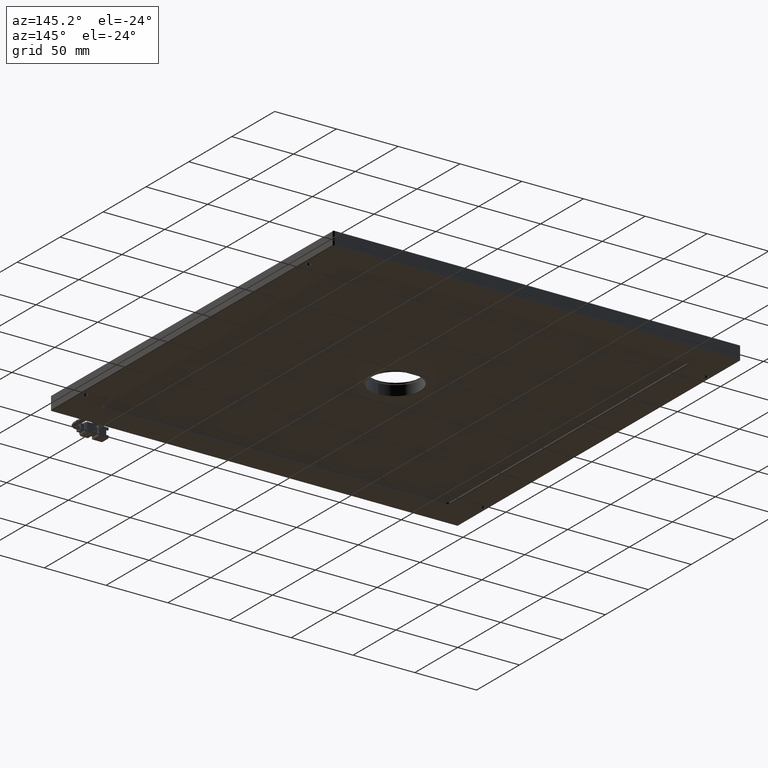
[diagram: clean part render]
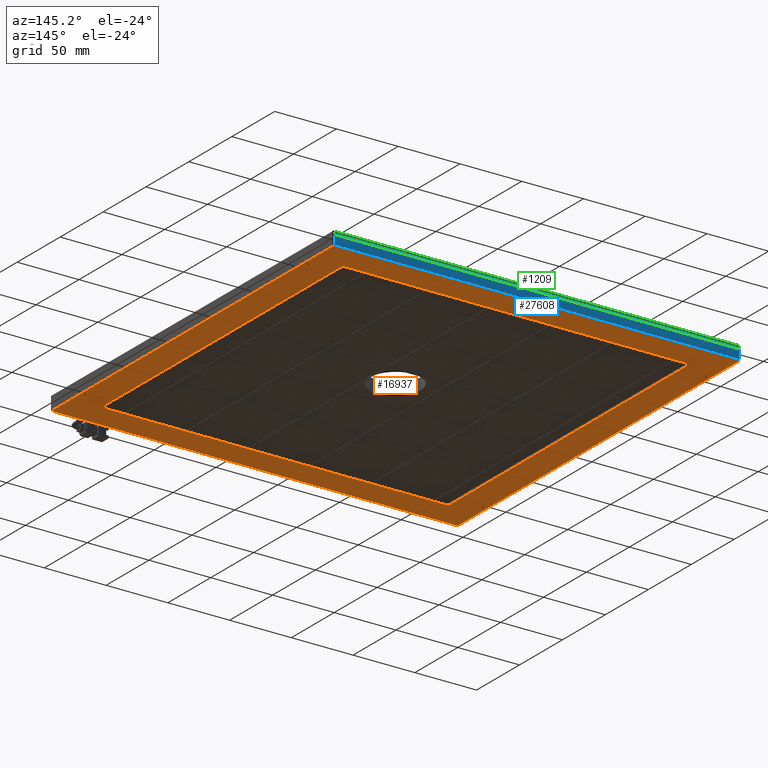
[diagram: same view with three faces highlighted in distinct colors, each labeled with its STEP entity id]
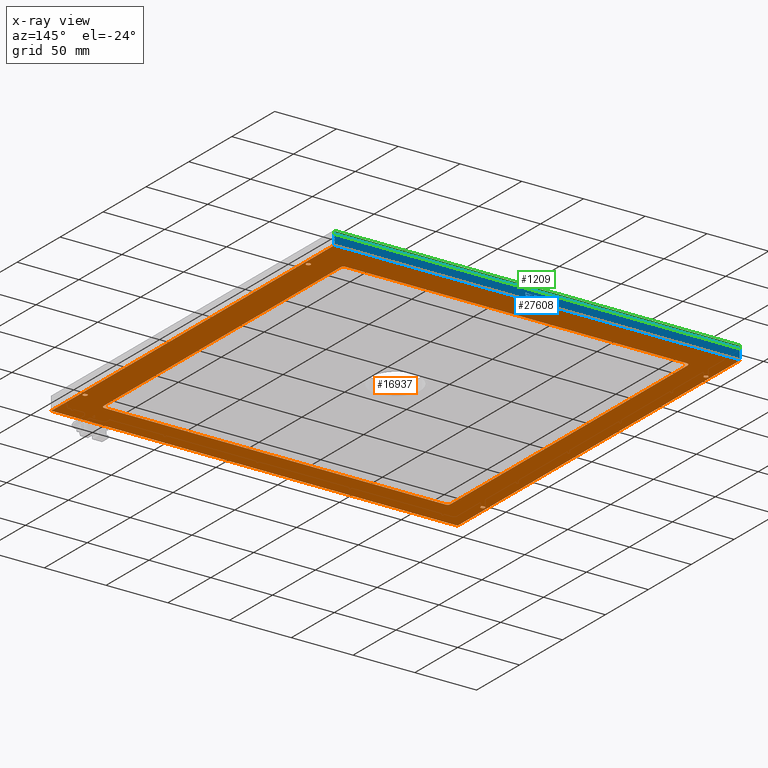
[diagram: x-ray of the same camera — body ghosted, the three highlighted faces saturated]
A machine part, auxiliary view with three faces highlighted in distinct colors.
The next image is the same camera in x-ray (body ghosted, the three faces saturated) — at least one of them is partly hidden behind the body in this view.
Their STEP definitions:

[orange] entity #16937 — the highlighted planar face has unit normal (0, 0, -1).
#81 = CIRCLE ( 'NONE', #6058, 2.500000000000446300 ) ;
#331 = AXIS2_PLACEMENT_3D ( 'NONE', #21868, #3828, #30457 ) ;
#500 = CIRCLE ( 'NONE', #32513, 2.500000000010910400 ) ;
#641 = CARTESIAN_POINT ( 'NONE',  ( -171.7439076390661200, -73.69342595209406000, -2.353412603683935300E-011 ) ) ;
#723 = LINE ( 'NONE', #17529, #32433 ) ;
#836 = CARTESIAN_POINT ( 'NONE',  ( 129.7560923609355500, -65.69342595209398900, 1.909843810876665800E-011 ) ) ;
#855 = DIRECTION ( 'NONE',  ( -1.000000000000000000, 0.0000000000000000000, -0.0000000000000000000 ) ) ;
#1217 = VECTOR ( 'NONE', #4351, 1000.000000000000000 ) ;
#1247 = VERTEX_POINT ( 'NONE', #28548 ) ;
#1284 = ORIENTED_EDGE ( 'NONE', *, *, #13678, .T. ) ;
#1474 = DIRECTION ( 'NONE',  ( -0.0000000000000000000, -0.0000000000000000000, 1.000000000000000000 ) ) ;
#1488 = DIRECTION ( 'NONE',  ( -1.000000000000000000, 0.0000000000000000000, 0.0000000000000000000 ) ) ;
#1519 = CARTESIAN_POINT ( 'NONE',  ( -169.2439076390645000, 204.8065740479047200, 1.909843810876665800E-011 ) ) ;
#1520 = VECTOR ( 'NONE', #29927, 1000.000000000000000 ) ;
#1524 = DIRECTION ( 'NONE',  ( -0.0000000000000000000, -0.0000000000000000000, 1.000000000000000000 ) ) ;
#1689 = EDGE_CURVE ( 'NONE', #24079, #25593, #6255, .T. ) ;
#1751 = CIRCLE ( 'NONE', #30303, 1.749999999999973800 ) ;
#2134 = AXIS2_PLACEMENT_3D ( 'NONE', #11667, #27425, #32464 ) ;
#2147 = EDGE_LOOP ( 'NONE', ( #11932, #15451 ) ) ;
#2331 = DIRECTION ( 'NONE',  ( -0.0000000000000000000, -1.000000000000000000, -0.0000000000000000000 ) ) ;
#2393 = EDGE_CURVE ( 'NONE', #27273, #31080, #500, .T. ) ;
#2411 = CIRCLE ( 'NONE', #2134, 1.749999999999973800 ) ;
#2452 = EDGE_LOOP ( 'NONE', ( #1284, #18488, #11174, #25223, #30535, #4257, #17530, #30049 ) ) ;
#2676 = VERTEX_POINT ( 'NONE', #641 ) ;
#2739 = CARTESIAN_POINT ( 'NONE',  ( 106.7560923609355300, 204.8065740479060000, 1.909843810876665800E-011 ) ) ;
#2750 = CARTESIAN_POINT ( 'NONE',  ( 129.7560923609355500, 194.3065740479060000, 1.909843810876665800E-011 ) ) ;
#2958 = EDGE_CURVE ( 'NONE', #23357, #21242, #6877, .T. ) ;
#3431 = DIRECTION ( 'NONE',  ( 1.000000000000000000, 0.0000000000000000000, 0.0000000000000000000 ) ) ;
#3461 = VERTEX_POINT ( 'NONE', #13302 ) ;
#3530 = CARTESIAN_POINT ( 'NONE',  ( 133.2560923609355000, -100.1934259520940600, 1.906897163417127600E-011 ) ) ;
#3533 = DIRECTION ( 'NONE',  ( 0.0000000000000000000, 1.000000000000000000, 0.0000000000000000000 ) ) ;
#3828 = DIRECTION ( 'NONE',  ( -0.0000000000000000000, -0.0000000000000000000, 1.000000000000000000 ) ) ;
#3847 = CARTESIAN_POINT ( 'NONE',  ( -192.2439076390645000, -65.69342595209398900, 1.909843810876665800E-011 ) ) ;
#3860 = CARTESIAN_POINT ( 'NONE',  ( -169.2439076390645300, 202.3065740479060000, 1.909843810876665800E-011 ) ) ;
#4034 = LINE ( 'NONE', #4462, #10054 ) ;
#4257 = ORIENTED_EDGE ( 'NONE', *, *, #2393, .T. ) ;
#4323 = FACE_BOUND ( 'NONE', #19330, .T. ) ;
#4351 = DIRECTION ( 'NONE',  ( 1.000000000000000000, -0.0000000000000000000, 0.0000000000000000000 ) ) ;
#4462 = CARTESIAN_POINT ( 'NONE',  ( -171.7439076390646400, 229.3065740479060800, 1.909843810876665800E-011 ) ) ;
#4703 = CARTESIAN_POINT ( 'NONE',  ( 133.2560923609355500, 229.3065740479060800, 1.909843810876665800E-011 ) ) ;
#4705 = DIRECTION ( 'NONE',  ( 0.0000000000000000000, 1.000000000000000000, 0.0000000000000000000 ) ) ;
#5337 = DIRECTION ( 'NONE',  ( 1.000000000000000000, 0.0000000000000000000, 0.0000000000000000000 ) ) ;
#6032 = CARTESIAN_POINT ( 'NONE',  ( -196.2439076390645300, 229.3065740479060800, 1.909843810876665800E-011 ) ) ;
#6053 = LINE ( 'NONE', #13987, #26504 ) ;
#6058 = AXIS2_PLACEMENT_3D ( 'NONE', #15045, #25038, #25141 ) ;
#6164 = CARTESIAN_POINT ( 'NONE',  ( 109.2560923609342500, 202.3065740479060000, 1.909843810876665800E-011 ) ) ;
#6255 = CIRCLE ( 'NONE', #22661, 2.500000000000446300 ) ;
#6450 = DIRECTION ( 'NONE',  ( -0.0000000000000000000, -0.0000000000000000000, 1.000000000000000000 ) ) ;
#6462 = EDGE_CURVE ( 'NONE', #25593, #27273, #26897, .T. ) ;
#6702 = CARTESIAN_POINT ( 'NONE',  ( 128.0060923609355800, 194.3065740479060000, 1.909843810876665800E-011 ) ) ;
#6830 = EDGE_LOOP ( 'NONE', ( #8504, #12760 ) ) ;
#6860 = CARTESIAN_POINT ( 'NONE',  ( -196.2439076390645300, 228.8065740479060300, 1.909843810876665800E-011 ) ) ;
#6877 = CIRCLE ( 'NONE', #15591, 1.749999999999973800 ) ;
#6931 = DIRECTION ( 'NONE',  ( 1.000000000000000000, 0.0000000000000000000, 0.0000000000000000000 ) ) ;
#7495 = CIRCLE ( 'NONE', #13341, 1.749999999999973800 ) ;
#8201 = CARTESIAN_POINT ( 'NONE',  ( 109.2560923609342500, -73.69342595209401700, 6.173100225437266900E-011 ) ) ;
#8448 = CIRCLE ( 'NONE', #15346, 2.500000000010937900 ) ;
#8504 = ORIENTED_EDGE ( 'NONE', *, *, #17624, .T. ) ;
#8524 = ORIENTED_EDGE ( 'NONE', *, *, #13624, .T. ) ;
#8561 = VERTEX_POINT ( 'NONE', #8201 ) ;
#8716 = DIRECTION ( 'NONE',  ( -0.0000000000000000000, -0.0000000000000000000, 1.000000000000000000 ) ) ;
#8742 = DIRECTION ( 'NONE',  ( -0.0000000000000000000, -0.0000000000000000000, 1.000000000000000000 ) ) ;
#9187 = ORIENTED_EDGE ( 'NONE', *, *, #25482, .T. ) ;
#9256 = DIRECTION ( 'NONE',  ( -0.0000000000000000000, -0.0000000000000000000, 1.000000000000000000 ) ) ;
#9294 = VERTEX_POINT ( 'NONE', #26400 ) ;
#10054 = VECTOR ( 'NONE', #27522, 1000.000000000000000 ) ;
#10122 = VERTEX_POINT ( 'NONE', #30779 ) ;
#10273 = EDGE_CURVE ( 'NONE', #15713, #30757, #6053, .T. ) ;
#10317 = FACE_OUTER_BOUND ( 'NONE', #23023, .T. ) ;
#10764 = LINE ( 'NONE', #6860, #1520 ) ;
#11159 = DIRECTION ( 'NONE',  ( 1.000000000000000000, 0.0000000000000000000, 0.0000000000000000000 ) ) ;
#11174 = ORIENTED_EDGE ( 'NONE', *, *, #24645, .T. ) ;
#11223 = CARTESIAN_POINT ( 'NONE',  ( 106.7560923609354700, 202.3065740479060500, 1.909843810876665800E-011 ) ) ;
#11667 = CARTESIAN_POINT ( 'NONE',  ( -192.2439076390645000, -65.69342595209398900, 1.909843810876665800E-011 ) ) ;
#11932 = ORIENTED_EDGE ( 'NONE', *, *, #26006, .T. ) ;
#12760 = ORIENTED_EDGE ( 'NONE', *, *, #32778, .T. ) ;
#12939 = VERTEX_POINT ( 'NONE', #15505 ) ;
#13033 = CIRCLE ( 'NONE', #331, 1.749999999999973800 ) ;
#13284 = EDGE_CURVE ( 'NONE', #13295, #9294, #10764, .T. ) ;
#13295 = VERTEX_POINT ( 'NONE', #33027 ) ;
#13302 = CARTESIAN_POINT ( 'NONE',  ( -193.9939076390645000, 194.3065740479060000, 1.909843810876665800E-011 ) ) ;
#13341 = AXIS2_PLACEMENT_3D ( 'NONE', #15003, #22766, #25200 ) ;
#13609 = EDGE_CURVE ( 'NONE', #20130, #12939, #2411, .T. ) ;
#13624 = EDGE_CURVE ( 'NONE', #27200, #16000, #27680, .T. ) ;
#13678 = EDGE_CURVE ( 'NONE', #1247, #10122, #32520, .T. ) ;
#13838 = EDGE_CURVE ( 'NONE', #31080, #2676, #4034, .T. ) ;
#13987 = CARTESIAN_POINT ( 'NONE',  ( -196.2439076390645300, -100.1934259520940500, 1.909843810876665800E-011 ) ) ;
#15003 = CARTESIAN_POINT ( 'NONE',  ( -192.2439076390645000, 194.3065740479060000, 1.909843810876665800E-011 ) ) ;
#15045 = CARTESIAN_POINT ( 'NONE',  ( 106.7560923609354700, -73.69342595209401700, 7.594185696957467300E-011 ) ) ;
#15258 = VECTOR ( 'NONE', #24770, 1000.000000000000000 ) ;
#15346 = AXIS2_PLACEMENT_3D ( 'NONE', #25156, #19923, #22394 ) ;
#15451 = ORIENTED_EDGE ( 'NONE', *, *, #2958, .T. ) ;
#15505 = CARTESIAN_POINT ( 'NONE',  ( -193.9939076390645000, -65.69342595209398900, 1.909843810876665800E-011 ) ) ;
#15591 = AXIS2_PLACEMENT_3D ( 'NONE', #836, #8716, #3431 ) ;
#15713 = VERTEX_POINT ( 'NONE', #3530 ) ;
#15824 = ORIENTED_EDGE ( 'NONE', *, *, #13609, .T. ) ;
#16000 = VERTEX_POINT ( 'NONE', #22729 ) ;
#16657 = EDGE_CURVE ( 'NONE', #9294, #15713, #32403, .T. ) ;
#16937 = ADVANCED_FACE ( 'NONE', ( #10317, #4323, #30762, #19591, #23983, #29967 ), #23661, .T. ) ;
#17506 = ORIENTED_EDGE ( 'NONE', *, *, #21763, .T. ) ;
#17529 = CARTESIAN_POINT ( 'NONE',  ( -195.7439076390645900, 229.3065740479060800, 1.909843810876665800E-011 ) ) ;
#17530 = ORIENTED_EDGE ( 'NONE', *, *, #13838, .T. ) ;
#17617 = ORIENTED_EDGE ( 'NONE', *, *, #13284, .T. ) ;
#17624 = EDGE_CURVE ( 'NONE', #26597, #3461, #13033, .T. ) ;
#18415 = CARTESIAN_POINT ( 'NONE',  ( -195.7439076390645600, -100.1934259520940200, 1.909259888307301500E-011 ) ) ;
#18488 = ORIENTED_EDGE ( 'NONE', *, *, #22605, .T. ) ;
#18576 = CARTESIAN_POINT ( 'NONE',  ( -190.4939076390645300, -65.69342595209398900, 1.909843810876665800E-011 ) ) ;
#18740 = DIRECTION ( 'NONE',  ( -1.000000000000000000, 0.0000000000000000000, 0.0000000000000000000 ) ) ;
#19232 = CARTESIAN_POINT ( 'NONE',  ( 129.7560923609355500, -65.69342595209398900, 1.909843810876665800E-011 ) ) ;
#19330 = EDGE_LOOP ( 'NONE', ( #15824, #25104 ) ) ;
#19591 = FACE_BOUND ( 'NONE', #23592, .T. ) ;
#19923 = DIRECTION ( 'NONE',  ( -0.0000000000000000000, -0.0000000000000000000, 1.000000000000000000 ) ) ;
#20014 = CIRCLE ( 'NONE', #27689, 1.749999999999973800 ) ;
#20130 = VERTEX_POINT ( 'NONE', #18576 ) ;
#20578 = AXIS2_PLACEMENT_3D ( 'NONE', #6032, #29117, #855 ) ;
#20745 = CIRCLE ( 'NONE', #28469, 1.749999999999973800 ) ;
#20831 = DIRECTION ( 'NONE',  ( -0.0000000000000000000, -0.0000000000000000000, 1.000000000000000000 ) ) ;
#21201 = CARTESIAN_POINT ( 'NONE',  ( 131.5060923609355300, -65.69342595209398900, 1.909843810876665800E-011 ) ) ;
#21242 = VERTEX_POINT ( 'NONE', #21201 ) ;
#21763 = EDGE_CURVE ( 'NONE', #16000, #27200, #1751, .T. ) ;
#21868 = CARTESIAN_POINT ( 'NONE',  ( -192.2439076390645000, 194.3065740479060000, 1.909843810876665800E-011 ) ) ;
#22224 = CARTESIAN_POINT ( 'NONE',  ( -196.2439076390645300, 204.8065740479060000, 1.909843810876665800E-011 ) ) ;
#22394 = DIRECTION ( 'NONE',  ( -1.000000000000000000, -5.551115123101496000E-015, 0.0000000000000000000 ) ) ;
#22605 = EDGE_CURVE ( 'NONE', #10122, #8561, #81, .T. ) ;
#22661 = AXIS2_PLACEMENT_3D ( 'NONE', #11223, #8742, #18740 ) ;
#22729 = CARTESIAN_POINT ( 'NONE',  ( 131.5060923609355300, 194.3065740479060000, 1.909843810876665800E-011 ) ) ;
#22766 = DIRECTION ( 'NONE',  ( -0.0000000000000000000, -0.0000000000000000000, 1.000000000000000000 ) ) ;
#23023 = EDGE_LOOP ( 'NONE', ( #28572, #29374, #9187, #17617 ) ) ;
#23136 = VECTOR ( 'NONE', #3533, 1000.000000000000000 ) ;
#23165 = EDGE_CURVE ( 'NONE', #2676, #1247, #8448, .T. ) ;
#23357 = VERTEX_POINT ( 'NONE', #23694 ) ;
#23592 = EDGE_LOOP ( 'NONE', ( #17506, #8524 ) ) ;
#23661 = PLANE ( 'NONE',  #20578 ) ;
#23694 = CARTESIAN_POINT ( 'NONE',  ( 128.0060923609355800, -65.69342595209398900, 1.909843810876665800E-011 ) ) ;
#23983 = FACE_BOUND ( 'NONE', #6830, .T. ) ;
#24079 = VERTEX_POINT ( 'NONE', #6164 ) ;
#24645 = EDGE_CURVE ( 'NONE', #8561, #24079, #31901, .T. ) ;
#24770 = DIRECTION ( 'NONE',  ( -1.000000000000000000, 0.0000000000000000000, -0.0000000000000000000 ) ) ;
#25038 = DIRECTION ( 'NONE',  ( -0.0000000000000000000, -0.0000000000000000000, 1.000000000000000000 ) ) ;
#25104 = ORIENTED_EDGE ( 'NONE', *, *, #30389, .T. ) ;
#25141 = DIRECTION ( 'NONE',  ( -1.000000000000000000, 0.0000000000000000000, 0.0000000000000000000 ) ) ;
#25156 = CARTESIAN_POINT ( 'NONE',  ( -169.2439076390645000, -73.69342595209404600, -3.774498075204135700E-011 ) ) ;
#25200 = DIRECTION ( 'NONE',  ( 1.000000000000000000, 0.0000000000000000000, 0.0000000000000000000 ) ) ;
#25223 = ORIENTED_EDGE ( 'NONE', *, *, #1689, .T. ) ;
#25482 = EDGE_CURVE ( 'NONE', #30757, #13295, #723, .T. ) ;
#25593 = VERTEX_POINT ( 'NONE', #2739 ) ;
#26006 = EDGE_CURVE ( 'NONE', #21242, #23357, #20014, .T. ) ;
#26400 = CARTESIAN_POINT ( 'NONE',  ( 133.2560923609355000, 228.8065740479060300, 1.907139556035249300E-011 ) ) ;
#26504 = VECTOR ( 'NONE', #26981, 1000.000000000000000 ) ;
#26597 = VERTEX_POINT ( 'NONE', #27138 ) ;
#26897 = LINE ( 'NONE', #22224, #15258 ) ;
#26981 = DIRECTION ( 'NONE',  ( -1.000000000000000000, 0.0000000000000000000, -0.0000000000000000000 ) ) ;
#27138 = CARTESIAN_POINT ( 'NONE',  ( -190.4939076390645300, 194.3065740479060000, 1.909843810876665800E-011 ) ) ;
#27200 = VERTEX_POINT ( 'NONE', #6702 ) ;
#27266 = DIRECTION ( 'NONE',  ( 1.000000000000000000, 0.0000000000000000000, 0.0000000000000000000 ) ) ;
#27273 = VERTEX_POINT ( 'NONE', #1519 ) ;
#27425 = DIRECTION ( 'NONE',  ( -0.0000000000000000000, -0.0000000000000000000, 1.000000000000000000 ) ) ;
#27522 = DIRECTION ( 'NONE',  ( -0.0000000000000000000, -1.000000000000000000, -0.0000000000000000000 ) ) ;
#27680 = CIRCLE ( 'NONE', #31519, 1.749999999999973800 ) ;
#27689 = AXIS2_PLACEMENT_3D ( 'NONE', #19232, #6450, #11159 ) ;
#28469 = AXIS2_PLACEMENT_3D ( 'NONE', #3847, #1474, #27266 ) ;
#28548 = CARTESIAN_POINT ( 'NONE',  ( -169.2439076390645300, -76.19342595212239600, -9.323483448149358800E-012 ) ) ;
#28572 = ORIENTED_EDGE ( 'NONE', *, *, #16657, .T. ) ;
#29117 = DIRECTION ( 'NONE',  ( 0.0000000000000000000, 0.0000000000000000000, -1.000000000000000000 ) ) ;
#29210 = CARTESIAN_POINT ( 'NONE',  ( 109.2560923609354700, 229.3065740479060800, 1.909843810876665800E-011 ) ) ;
#29211 = VECTOR ( 'NONE', #2331, 1000.000000000000000 ) ;
#29374 = ORIENTED_EDGE ( 'NONE', *, *, #10273, .T. ) ;
#29565 = CARTESIAN_POINT ( 'NONE',  ( 129.7560923609355500, 194.3065740479060000, 1.909843810876665800E-011 ) ) ;
#29927 = DIRECTION ( 'NONE',  ( 1.000000000000000000, -0.0000000000000000000, 0.0000000000000000000 ) ) ;
#29967 = FACE_BOUND ( 'NONE', #2452, .T. ) ;
#30049 = ORIENTED_EDGE ( 'NONE', *, *, #23165, .T. ) ;
#30230 = CARTESIAN_POINT ( 'NONE',  ( -171.7439076390646400, 202.3065740479060000, 1.909874451372844500E-011 ) ) ;
#30303 = AXIS2_PLACEMENT_3D ( 'NONE', #2750, #20831, #5337 ) ;
#30389 = EDGE_CURVE ( 'NONE', #12939, #20130, #20745, .T. ) ;
#30457 = DIRECTION ( 'NONE',  ( 1.000000000000000000, 0.0000000000000000000, 0.0000000000000000000 ) ) ;
#30535 = ORIENTED_EDGE ( 'NONE', *, *, #6462, .T. ) ;
#30757 = VERTEX_POINT ( 'NONE', #18415 ) ;
#30762 = FACE_BOUND ( 'NONE', #2147, .T. ) ;
#30779 = CARTESIAN_POINT ( 'NONE',  ( 106.7560923609355300, -76.19342595209560900, 6.173100225437266900E-011 ) ) ;
#31080 = VERTEX_POINT ( 'NONE', #30230 ) ;
#31519 = AXIS2_PLACEMENT_3D ( 'NONE', #29565, #1524, #6931 ) ;
#31901 = LINE ( 'NONE', #29210, #23136 ) ;
#32232 = CARTESIAN_POINT ( 'NONE',  ( -196.2439076390645300, -76.19342595209397500, 1.909843810876665800E-011 ) ) ;
#32403 = LINE ( 'NONE', #4703, #29211 ) ;
#32433 = VECTOR ( 'NONE', #4705, 1000.000000000000000 ) ;
#32464 = DIRECTION ( 'NONE',  ( 1.000000000000000000, 0.0000000000000000000, 0.0000000000000000000 ) ) ;
#32513 = AXIS2_PLACEMENT_3D ( 'NONE', #3860, #9256, #1488 ) ;
#32520 = LINE ( 'NONE', #32232, #1217 ) ;
#32778 = EDGE_CURVE ( 'NONE', #3461, #26597, #7495, .T. ) ;
#33027 = CARTESIAN_POINT ( 'NONE',  ( -195.7439076390645600, 228.8065740479060800, 1.907674125201854800E-011 ) ) ;

[blue] entity #27608 — the highlighted planar face has unit normal (-0, -1, 0).
#89 = CARTESIAN_POINT ( 'NONE',  ( -26.01583587103458900, 229.3065740479060500, 2.932214584055601300 ) ) ;
#147 = LINE ( 'NONE', #14488, #21896 ) ;
#169 = CARTESIAN_POINT ( 'NONE',  ( -32.89750163631301700, 229.3065740479060500, 4.712149684109680200 ) ) ;
#260 = CARTESIAN_POINT ( 'NONE',  ( -36.56110084048005100, 229.3065740479060500, 4.840772119023578800 ) ) ;
#316 = CARTESIAN_POINT ( 'NONE',  ( -36.08235831559927200, 229.3065740479060500, 3.927563421264895500 ) ) ;
#323 = DIRECTION ( 'NONE',  ( -0.0000000000000000000, -0.0000000000000000000, 1.000000000000000000 ) ) ;
#327 = LINE ( 'NONE', #19215, #2346 ) ;
#351 = CARTESIAN_POINT ( 'NONE',  ( -39.35898879070583700, 229.3065740479060500, 2.401841240074909800 ) ) ;
#355 = EDGE_CURVE ( 'NONE', #30253, #32392, #2789, .T. ) ;
#366 = EDGE_CURVE ( 'NONE', #25343, #2343, #16073, .T. ) ;
#420 = DIRECTION ( 'NONE',  ( -0.0000000000000000000, -0.0000000000000000000, -1.000000000000000000 ) ) ;
#435 = ORIENTED_EDGE ( 'NONE', *, *, #23364, .F. ) ;
#469 = FACE_OUTER_BOUND ( 'NONE', #7450, .T. ) ;
#499 = VERTEX_POINT ( 'NONE', #29969 ) ;
#515 = CARTESIAN_POINT ( 'NONE',  ( -27.85856166876318300, 229.3065740479060500, 3.149358986435261400 ) ) ;
#529 = CARTESIAN_POINT ( 'NONE',  ( -35.66580882939054200, 229.3065740479060500, 3.936865746846293300 ) ) ;
#602 = CARTESIAN_POINT ( 'NONE',  ( -22.05861575205133800, 229.3065740479060500, 4.401982025916062500 ) ) ;
#672 = CARTESIAN_POINT ( 'NONE',  ( -35.24925934318159200, 229.3065740479060500, 4.057795979404438000 ) ) ;
#688 = DIRECTION ( 'NONE',  ( -0.0000000000000000000, -0.0000000000000000000, 1.000000000000000000 ) ) ;
#745 = CARTESIAN_POINT ( 'NONE',  ( -23.81156329126174100, 229.3065740479060500, 3.564772723590475600 ) ) ;
#835 = VERTEX_POINT ( 'NONE', #6816 ) ;
#898 = CARTESIAN_POINT ( 'NONE',  ( -35.46618741240838800, 229.3065740479060500, 4.668693761989614700 ) ) ;
#904 = CARTESIAN_POINT ( 'NONE',  ( -23.44709601165109400, 229.3065740479060500, 4.634540165450953700 ) ) ;
#1000 = ORIENTED_EDGE ( 'NONE', *, *, #15397, .F. ) ;
#1015 = CARTESIAN_POINT ( 'NONE',  ( -23.40366713117527900, 229.3065740479060500, 3.564772723590475600 ) ) ;
#1085 = CARTESIAN_POINT ( 'NONE',  ( -30.53709060332229400, 229.3065740479060500, 2.904307607311408000 ) ) ;
#1098 = ORIENTED_EDGE ( 'NONE', *, *, #10484, .F. ) ;
#1145 = CARTESIAN_POINT ( 'NONE',  ( -34.43936210142941700, 229.3065740479060500, 3.099656444520707800 ) ) ;
#1163 = LINE ( 'NONE', #5611, #25628 ) ;
#1278 = EDGE_LOOP ( 'NONE', ( #24882, #22454, #28142, #32306, #14906, #9232, #20415, #8462, #30567, #28760, #18241, #15537, #5902, #435 ) ) ;
#1326 = B_SPLINE_CURVE_WITH_KNOTS ( 'NONE', 3,
 ( #10499, #28403, #5327, #12974 ),
 .UNSPECIFIED., .F., .F.,
 ( 4, 4 ),
 ( 6.000000000000000000, 7.000000000000000000 ),
 .UNSPECIFIED. ) ;
#1349 = VERTEX_POINT ( 'NONE', #27237 ) ;
#1362 = ORIENTED_EDGE ( 'NONE', *, *, #21571, .F. ) ;
#1460 = CARTESIAN_POINT ( 'NONE',  ( -26.01583587103459300, 229.3065740479060500, 2.932214584055601300 ) ) ;
#1623 = CARTESIAN_POINT ( 'NONE',  ( -23.15201759088311200, 229.3065740479060500, 3.453144816613735700 ) ) ;
#1675 = CARTESIAN_POINT ( 'NONE',  ( -37.10488303373689700, 229.3065740479060500, 5.384581506973770400 ) ) ;
#1698 = FACE_BOUND ( 'NONE', #3506, .T. ) ;
#1762 = ORIENTED_EDGE ( 'NONE', *, *, #9378, .F. ) ;
#1813 = CARTESIAN_POINT ( 'NONE',  ( -22.08462981370626100, 229.3065740479060500, 3.527563421264897900 ) ) ;
#1922 = CARTESIAN_POINT ( 'NONE',  ( -32.35077367525309500, 229.3065740479060500, 2.932214584055601300 ) ) ;
#1998 = B_SPLINE_CURVE_WITH_KNOTS ( 'NONE', 3,
 ( #20838, #8162, #13767, #3875 ),
 .UNSPECIFIED., .F., .F.,
 ( 4, 4 ),
 ( 3.000000000000000000, 4.000000000000000000 ),
 .UNSPECIFIED. ) ;
#2052 = ORIENTED_EDGE ( 'NONE', *, *, #27419, .F. ) ;
#2056 = CARTESIAN_POINT ( 'NONE',  ( -28.54114684994210200, 229.3065740479060500, 4.234540165450956000 ) ) ;
#2191 = CARTESIAN_POINT ( 'NONE',  ( -25.12194728260843800, 229.3065740479060500, 3.936865746846293300 ) ) ;
#2244 = CARTESIAN_POINT ( 'NONE',  ( -22.72681477855212200, 229.3065740479060500, 3.453144816613735700 ) ) ;
#2248 = EDGE_CURVE ( 'NONE', #12410, #24467, #2677, .T. ) ;
#2279 = CARTESIAN_POINT ( 'NONE',  ( -27.04850217714596300, 229.3065740479060500, 4.932214584055595100 ) ) ;
#2299 = EDGE_CURVE ( 'NONE', #18004, #17554, #3125, .T. ) ;
#2343 = VERTEX_POINT ( 'NONE', #3965 ) ;
#2346 = VECTOR ( 'NONE', #31940, 1000.000000000000000 ) ;
#2374 = CARTESIAN_POINT ( 'NONE',  ( -22.44909709331690800, 229.3065740479060500, 2.904307607311408000 ) ) ;
#2448 = EDGE_CURVE ( 'NONE', #22662, #27093, #20544, .T. ) ;
#2469 = B_SPLINE_CURVE_WITH_KNOTS ( 'NONE', 3,
 ( #25509, #351, #10488, #18355 ),
 .UNSPECIFIED., .F., .F.,
 ( 4, 4 ),
 ( 1.000000000000000000, 2.000000000000000000 ),
 .UNSPECIFIED. ) ;
#2543 = CARTESIAN_POINT ( 'NONE',  ( -36.74600744371338800, 229.3065740479060500, 5.384581506973770400 ) ) ;
#2546 = EDGE_CURVE ( 'NONE', #24563, #18347, #9757, .T. ) ;
#2618 = VECTOR ( 'NONE', #26170, 1000.000000000000000 ) ;
#2677 = B_SPLINE_CURVE_WITH_KNOTS ( 'NONE', 3,
 ( #26618, #1145, #3748, #6110 ),
 .UNSPECIFIED., .F., .F.,
 ( 4, 4 ),
 ( 13.00000000000000000, 14.00000000000000000 ),
 .UNSPECIFIED. ) ;
#2682 = B_SPLINE_CURVE_WITH_KNOTS ( 'NONE', 3,
 ( #8145, #5326, #26048, #15773 ),
 .UNSPECIFIED., .F., .F.,
 ( 4, 4 ),
 ( 2.000000000000000000, 3.000000000000000000 ),
 .UNSPECIFIED. ) ;
#2789 = LINE ( 'NONE', #32094, #22504 ) ;
#2814 = DIRECTION ( 'NONE',  ( -0.0000000000000000000, -0.0000000000000000000, 1.000000000000000000 ) ) ;
#2890 = ORIENTED_EDGE ( 'NONE', *, *, #17398, .F. ) ;
#2923 = VECTOR ( 'NONE', #2814, 1000.000000000000000 ) ;
#2926 = CARTESIAN_POINT ( 'NONE',  ( -30.53709060332229400, 229.3065740479060500, 2.904307607311408000 ) ) ;
#3031 = CARTESIAN_POINT ( 'NONE',  ( -35.66580882939054200, 229.3065740479060500, 3.936865746846293300 ) ) ;
#3103 = VECTOR ( 'NONE', #19752, 1000.000000000000000 ) ;
#3119 = ORIENTED_EDGE ( 'NONE', *, *, #13615, .F. ) ;
#3125 = B_SPLINE_CURVE_WITH_KNOTS ( 'NONE', 3,
 ( #16777, #4307, #14407, #14076 ),
 .UNSPECIFIED., .F., .F.,
 ( 4, 4 ),
 ( 4.000000000000000000, 5.000000000000000000 ),
 .UNSPECIFIED. ) ;
#3179 = CARTESIAN_POINT ( 'NONE',  ( -29.34817767741640200, 229.3065740479060500, 4.932214584055595100 ) ) ;
#3218 = LINE ( 'NONE', #7629, #8062 ) ;
#3236 = ORIENTED_EDGE ( 'NONE', *, *, #14082, .F. ) ;
#3275 = ORIENTED_EDGE ( 'NONE', *, *, #12026, .F. ) ;
#3333 = VERTEX_POINT ( 'NONE', #23202 ) ;
#3382 = CARTESIAN_POINT ( 'NONE',  ( -23.86948649299244400, 229.3065740479060500, 4.969423886381179900 ) ) ;
#3441 = VECTOR ( 'NONE', #31459, 1000.000000000000000 ) ;
#3468 = CARTESIAN_POINT ( 'NONE',  ( -22.90036805059105900, 229.3065740479060500, 2.910554227105902800 ) ) ;
#3506 = EDGE_LOOP ( 'NONE', ( #29856, #3119, #4514, #26198, #12919, #9421, #28576, #14506, #27207, #1362, #30159, #24314, #11258, #4765 ) ) ;
#3528 = ORIENTED_EDGE ( 'NONE', *, *, #11243, .F. ) ;
#3588 = CARTESIAN_POINT ( 'NONE',  ( -23.15201759088311200, 229.3065740479060500, 3.453144816613735700 ) ) ;
#3649 = DIRECTION ( 'NONE',  ( 1.000000000000000000, -0.0000000000000000000, -0.0000000000000000000 ) ) ;
#3748 = CARTESIAN_POINT ( 'NONE',  ( -34.71989211765443900, 229.3065740479060500, 2.904307607311408000 ) ) ;
#3751 = CARTESIAN_POINT ( 'NONE',  ( -27.04850217714596300, 229.3065740479060500, 3.211284351497454300 ) ) ;
#3816 = CARTESIAN_POINT ( 'NONE',  ( -34.30334263144565200, 229.3065740479060500, 3.778726211962571300 ) ) ;
#3875 = CARTESIAN_POINT ( 'NONE',  ( -33.61778286941204600, 229.3065740479060500, 4.188028537543966800 ) ) ;
#3915 = B_SPLINE_CURVE_WITH_KNOTS ( 'NONE', 3,
 ( #1015, #19016, #6210, #6094 ),
 .UNSPECIFIED., .F., .F.,
 ( 4, 4 ),
 ( 9.000000000000000000, 10.00000000000000000 ),
 .UNSPECIFIED. ) ;
#3928 = EDGE_CURVE ( 'NONE', #28277, #18391, #18414, .T. ) ;
#3934 = CARTESIAN_POINT ( 'NONE',  ( -24.69674447027739100, 229.3065740479060500, 3.955470398009089300 ) ) ;
#3965 = CARTESIAN_POINT ( 'NONE',  ( -27.66461899704861000, 229.3065740479060500, 2.932214584055601300 ) ) ;
#3988 = EDGE_CURVE ( 'NONE', #25416, #10576, #15599, .T. ) ;
#4065 = VECTOR ( 'NONE', #24089, 1000.000000000000000 ) ;
#4094 = EDGE_CURVE ( 'NONE', #24630, #7367, #23133, .T. ) ;
#4120 = FACE_BOUND ( 'NONE', #31680, .T. ) ;
#4141 = VECTOR ( 'NONE', #32888, 1000.000000000000000 ) ;
#4168 = CARTESIAN_POINT ( 'NONE',  ( -37.10488303373689700, 229.3065740479060500, 2.401841240074909800 ) ) ;
#4200 = CARTESIAN_POINT ( 'NONE',  ( -34.03433235562077600, 229.3065740479060500, 4.085702956148617600 ) ) ;
#4243 = CARTESIAN_POINT ( 'NONE',  ( -22.98143889969869500, 229.3065740479060500, 4.547763529431477100 ) ) ;
#4292 = EDGE_CURVE ( 'NONE', #29754, #30253, #22758, .T. ) ;
#4307 = CARTESIAN_POINT ( 'NONE',  ( -23.19258005708110600, 229.3065740479060500, 3.788028537543969100 ) ) ;
#4370 = CARTESIAN_POINT ( 'NONE',  ( -22.73546810467438600, 229.3065740479060500, 4.702847358528282000 ) ) ;
#4378 = B_SPLINE_CURVE_WITH_KNOTS ( 'NONE', 3,
 ( #27827, #20262, #15309, #14978 ),
 .UNSPECIFIED., .F., .F.,
 ( 4, 4 ),
 ( 2.000000000000000000, 3.000000000000000000 ),
 .UNSPECIFIED. ) ;
#4395 = EDGE_CURVE ( 'NONE', #835, #4902, #16711, .T. ) ;
#4406 = VECTOR ( 'NONE', #29626, 1000.000000000000000 ) ;
#4435 = CARTESIAN_POINT ( 'NONE',  ( -34.74590617930935800, 229.3065740479060500, 3.490354118939320600 ) ) ;
#4509 = EDGE_CURVE ( 'NONE', #10070, #31575, #7832, .T. ) ;
#4514 = ORIENTED_EDGE ( 'NONE', *, *, #31857, .F. ) ;
#4521 = VERTEX_POINT ( 'NONE', #529 ) ;
#4534 = LINE ( 'NONE', #4540, #23013 ) ;
#4540 = CARTESIAN_POINT ( 'NONE',  ( -33.61778286941204600, 229.3065740479060500, 2.932214584055601300 ) ) ;
#4732 = CARTESIAN_POINT ( 'NONE',  ( -22.39706897000695200, 229.3065740479060500, 3.741516909636993600 ) ) ;
#4753 = ORIENTED_EDGE ( 'NONE', *, *, #9737, .F. ) ;
#4759 = EDGE_CURVE ( 'NONE', #29887, #10070, #27539, .T. ) ;
#4765 = ORIENTED_EDGE ( 'NONE', *, *, #31714, .F. ) ;
#4766 = EDGE_CURVE ( 'NONE', #10225, #14795, #10699, .T. ) ;
#4833 = VECTOR ( 'NONE', #688, 1000.000000000000000 ) ;
#4859 = EDGE_CURVE ( 'NONE', #27796, #6276, #20728, .T. ) ;
#4863 = CARTESIAN_POINT ( 'NONE',  ( -39.35898879070583700, 229.3065740479060500, 5.384581506973770400 ) ) ;
#4866 = EDGE_CURVE ( 'NONE', #32141, #13153, #19949, .T. ) ;
#4896 = CARTESIAN_POINT ( 'NONE',  ( -21.68544106303024300, 229.3065740479060500, 3.527563421264897900 ) ) ;
#4902 = VERTEX_POINT ( 'NONE', #5022 ) ;
#5016 = VECTOR ( 'NONE', #21345, 1000.000000000000000 ) ;
#5022 = CARTESIAN_POINT ( 'NONE',  ( -28.94033560061812000, 229.3065740479060500, 4.932214584055595100 ) ) ;
#5173 = CARTESIAN_POINT ( 'NONE',  ( -31.43676610359271700, 229.3065740479060500, 4.591219451551535400 ) ) ;
#5295 = VERTEX_POINT ( 'NONE', #25085 ) ;
#5326 = CARTESIAN_POINT ( 'NONE',  ( -22.06445674718379400, 229.3065740479060500, 4.606633188706760000 ) ) ;
#5327 = CARTESIAN_POINT ( 'NONE',  ( -22.00950812630772200, 229.3065740479060500, 2.916800846900383900 ) ) ;
#5401 = CARTESIAN_POINT ( 'NONE',  ( -25.77283965686474700, 229.3065740479060500, 4.932214584055595100 ) ) ;
#5402 = EDGE_CURVE ( 'NONE', #24467, #23343, #20990, .T. ) ;
#5514 = VECTOR ( 'NONE', #6514, 1000.000000000000000 ) ;
#5548 = ORIENTED_EDGE ( 'NONE', *, *, #15194, .F. ) ;
#5602 = CARTESIAN_POINT ( 'NONE',  ( -35.64844809385777300, 229.3065740479060500, 3.465638056202704900 ) ) ;
#5611 = CARTESIAN_POINT ( 'NONE',  ( -23.19544647135898400, 229.3065740479060500, 4.597330863125376000 ) ) ;
#5713 = VERTEX_POINT ( 'NONE', #27039 ) ;
#5850 = EDGE_CURVE ( 'NONE', #13886, #8434, #28681, .T. ) ;
#5902 = ORIENTED_EDGE ( 'NONE', *, *, #3988, .F. ) ;
#5922 = CARTESIAN_POINT ( 'NONE',  ( -30.53709060332229400, 229.3065740479060500, 2.904307607311408000 ) ) ;
#5998 = CARTESIAN_POINT ( 'NONE',  ( -39.54384103202853900, 229.3065740479060500, 3.054396197041352700 ) ) ;
#6037 = ORIENTED_EDGE ( 'NONE', *, *, #11125, .F. ) ;
#6067 = CARTESIAN_POINT ( 'NONE',  ( -35.47786940267324200, 229.3065740479060500, 3.214475265505025700 ) ) ;
#6094 = CARTESIAN_POINT ( 'NONE',  ( -24.22811277747052500, 229.3065740479060500, 2.904307607311408000 ) ) ;
#6110 = CARTESIAN_POINT ( 'NONE',  ( -35.15380233939582400, 229.3065740479060500, 2.904307607311408000 ) ) ;
#6122 = FACE_BOUND ( 'NONE', #1278, .T. ) ;
#6140 = CARTESIAN_POINT ( 'NONE',  ( 132.7560923609354400, 229.3065740479060300, 0.5000000000190766300 ) ) ;
#6210 = CARTESIAN_POINT ( 'NONE',  ( -23.77116307492857300, 229.3065740479060500, 2.910554227105902800 ) ) ;
#6276 = VERTEX_POINT ( 'NONE', #21437 ) ;
#6313 = DIRECTION ( 'NONE',  ( -0.0000000000000000000, -0.0000000000000000000, 1.000000000000000000 ) ) ;
#6342 = VERTEX_POINT ( 'NONE', #6933 ) ;
#6414 = VERTEX_POINT ( 'NONE', #22435 ) ;
#6440 = ORIENTED_EDGE ( 'NONE', *, *, #30871, .F. ) ;
#6473 = VECTOR ( 'NONE', #30569, 1000.000000000000000 ) ;
#6510 = VERTEX_POINT ( 'NONE', #17155 ) ;
#6514 = DIRECTION ( 'NONE',  ( 1.000000000000000000, -0.0000000000000000000, -0.0000000000000000000 ) ) ;
#6522 = B_SPLINE_CURVE_WITH_KNOTS ( 'NONE', 3,
 ( #27961, #2543, #17947, #260 ),
 .UNSPECIFIED., .F., .F.,
 ( 4, 4 ),
 ( 5.000000000000000000, 6.000000000000000000 ),
 .UNSPECIFIED. ) ;
#6537 = EDGE_CURVE ( 'NONE', #33169, #12410, #14466, .T. ) ;
#6564 = VERTEX_POINT ( 'NONE', #7574 ) ;
#6620 = CARTESIAN_POINT ( 'NONE',  ( -34.69387805599940600, 229.3065740479060500, 4.392679700334664300 ) ) ;
#6621 = VERTEX_POINT ( 'NONE', #32877 ) ;
#6658 = EDGE_CURVE ( 'NONE', #13153, #24563, #2469, .T. ) ;
#6659 = CARTESIAN_POINT ( 'NONE',  ( -22.05861575205133800, 229.3065740479060500, 4.240786785245430400 ) ) ;
#6777 = CARTESIAN_POINT ( 'NONE',  ( -32.35077367525309500, 229.3065740479060500, 2.932214584055601300 ) ) ;
#6816 = CARTESIAN_POINT ( 'NONE',  ( -29.34817767741640200, 229.3065740479060500, 4.932214584055595100 ) ) ;
#6865 = CARTESIAN_POINT ( 'NONE',  ( -35.12773419445260700, 229.3065740479060500, 4.969423886381179900 ) ) ;
#6873 = VERTEX_POINT ( 'NONE', #21047 ) ;
#6933 = CARTESIAN_POINT ( 'NONE',  ( -34.69387805599940600, 229.3065740479060500, 4.392679700334664300 ) ) ;
#6950 = B_SPLINE_CURVE_WITH_KNOTS ( 'NONE', 3,
 ( #22955, #7225, #4863, #12848 ),
 .UNSPECIFIED., .F., .F.,
 ( 4, 4 ),
 ( 7.000000000000000000, 8.000000000000000000 ),
 .UNSPECIFIED. ) ;
#7069 = CARTESIAN_POINT ( 'NONE',  ( 132.7560923609355000, 229.3065740479060300, 8.000000000019099400 ) ) ;
#7187 = EDGE_CURVE ( 'NONE', #6564, #15319, #11578, .T. ) ;
#7225 = CARTESIAN_POINT ( 'NONE',  ( -39.54384103202853900, 229.3065740479060500, 5.199702080025288000 ) ) ;
#7249 = VECTOR ( 'NONE', #17708, 1000.000000000000000 ) ;
#7319 = CARTESIAN_POINT ( 'NONE',  ( -21.63335885643210700, 229.3065740479060500, 4.057795979404438000 ) ) ;
#7367 = VERTEX_POINT ( 'NONE', #20297 ) ;
#7398 = CARTESIAN_POINT ( 'NONE',  ( -23.44709601165109400, 229.3065740479060500, 4.253144816613738200 ) ) ;
#7450 = EDGE_LOOP ( 'NONE', ( #6440, #16316, #9722, #26607 ) ) ;
#7574 = CARTESIAN_POINT ( 'NONE',  ( -26.63195269093723600, 229.3065740479060500, 3.211284351497454300 ) ) ;
#7629 = CARTESIAN_POINT ( 'NONE',  ( -25.36494349677828100, 229.3065740479060500, 2.932214584055601300 ) ) ;
#7832 = LINE ( 'NONE', #23804, #5016 ) ;
#7854 = CARTESIAN_POINT ( 'NONE',  ( -195.2439076390645300, 229.3065740479060800, 8.000000000019099400 ) ) ;
#7895 = VECTOR ( 'NONE', #6313, 1000.000000000000000 ) ;
#8014 = ORIENTED_EDGE ( 'NONE', *, *, #4094, .F. ) ;
#8062 = VECTOR ( 'NONE', #12814, 1000.000000000000000 ) ;
#8069 = LINE ( 'NONE', #26162, #4833 ) ;
#8076 = CARTESIAN_POINT ( 'NONE',  ( -21.88219606573440900, 229.3065740479060500, 4.969423886381179900 ) ) ;
#8077 = ORIENTED_EDGE ( 'NONE', *, *, #6658, .F. ) ;
#8078 = CARTESIAN_POINT ( 'NONE',  ( -31.46564657952562900, 229.3065740479060500, 3.946168072427691500 ) ) ;
#8145 = CARTESIAN_POINT ( 'NONE',  ( -22.05861575205133800, 229.3065740479060500, 4.401982025916062500 ) ) ;
#8162 = CARTESIAN_POINT ( 'NONE',  ( -33.47608465416059400, 229.3065740479060500, 4.699656444520725200 ) ) ;
#8187 = VERTEX_POINT ( 'NONE', #29751 ) ;
#8199 = LINE ( 'NONE', #8858, #9801 ) ;
#8225 = EDGE_CURVE ( 'NONE', #17554, #27027, #9862, .T. ) ;
#8309 = EDGE_CURVE ( 'NONE', #15639, #26137, #11934, .T. ) ;
#8308 = DIRECTION ( 'NONE',  ( -0.0000000000000000000, -0.0000000000000000000, -1.000000000000000000 ) ) ;
#8317 = CARTESIAN_POINT ( 'NONE',  ( -36.08235831559927200, 229.3065740479060500, 3.927563421264895500 ) ) ;
#8344 = CARTESIAN_POINT ( 'NONE',  ( -24.20209871581560200, 229.3065740479060500, 3.192679700334672500 ) ) ;
#8360 = ORIENTED_EDGE ( 'NONE', *, *, #22986, .F. ) ;
#8418 = CARTESIAN_POINT ( 'NONE',  ( -22.39706897000695200, 229.3065740479060500, 4.969423886381179900 ) ) ;
#8434 = VERTEX_POINT ( 'NONE', #20549 ) ;
#8462 = ORIENTED_EDGE ( 'NONE', *, *, #32642, .F. ) ;
#8619 = CARTESIAN_POINT ( 'NONE',  ( -22.72681477855212200, 229.3065740479060500, 3.453144816613735700 ) ) ;
#8634 = CARTESIAN_POINT ( 'NONE',  ( -24.78933505978517000, 229.3065740479060500, 4.938325995629422300 ) ) ;
#8858 = CARTESIAN_POINT ( 'NONE',  ( -27.66461899704861000, 229.3065740479060500, 3.211284351497454300 ) ) ;
#8900 = VECTOR ( 'NONE', #11413, 1000.000000000000000 ) ;
#8966 = VERTEX_POINT ( 'NONE', #25318 ) ;
#9079 = EDGE_CURVE ( 'NONE', #20450, #9097, #6522, .T. ) ;
#9097 = VERTEX_POINT ( 'NONE', #25002 ) ;
#9109 = EDGE_CURVE ( 'NONE', #8434, #25355, #19423, .T. ) ;
#9130 = CARTESIAN_POINT ( 'NONE',  ( -29.60853462711901300, 229.3065740479060500, 3.946168072427691500 ) ) ;
#9219 = ORIENTED_EDGE ( 'NONE', *, *, #7187, .F. ) ;
#9232 = ORIENTED_EDGE ( 'NONE', *, *, #26315, .F. ) ;
#9307 = CARTESIAN_POINT ( 'NONE',  ( -22.45780450272735300, 229.3065740479060500, 4.708958770102109200 ) ) ;
#9326 = ORIENTED_EDGE ( 'NONE', *, *, #10426, .F. ) ;
#9378 = EDGE_CURVE ( 'NONE', #499, #19428, #1998, .T. ) ;
#9421 = ORIENTED_EDGE ( 'NONE', *, *, #8225, .F. ) ;
#9528 = CARTESIAN_POINT ( 'NONE',  ( -33.20123338320326700, 229.3065740479060500, 4.969423886381179900 ) ) ;
#9539 = VERTEX_POINT ( 'NONE', #26649 ) ;
#9690 = EDGE_CURVE ( 'NONE', #11090, #10407, #32687, .T. ) ;
#9691 = ORIENTED_EDGE ( 'NONE', *, *, #9109, .F. ) ;
#9697 = CARTESIAN_POINT ( 'NONE',  ( -27.85272067363056100, 229.3065740479060500, 4.029889002660258500 ) ) ;
#9722 = ORIENTED_EDGE ( 'NONE', *, *, #20271, .F. ) ;
#9723 = CARTESIAN_POINT ( 'NONE',  ( -23.44709601165109400, 229.3065740479060500, 4.253144816613738200 ) ) ;
#9737 = EDGE_CURVE ( 'NONE', #18391, #13124, #16844, .T. ) ;
#9757 = LINE ( 'NONE', #15163, #2923 ) ;
#9784 = CARTESIAN_POINT ( 'NONE',  ( -25.77283965686474700, 229.3065740479060500, 4.932214584055595100 ) ) ;
#9801 = VECTOR ( 'NONE', #24562, 1000.000000000000000 ) ;
#9862 = B_SPLINE_CURVE_WITH_KNOTS ( 'NONE', 3,
 ( #21718, #19461, #6659, #14065 ),
 .UNSPECIFIED., .F., .F.,
 ( 4, 4 ),
 ( 3.000000000000000000, 4.000000000000000000 ),
 .UNSPECIFIED. ) ;
#9975 = CARTESIAN_POINT ( 'NONE',  ( -32.60545187968784800, 229.3065740479060500, 5.000386568912276200 ) ) ;
#9981 = CARTESIAN_POINT ( 'NONE',  ( -23.86662007871445500, 229.3065740479060500, 4.712149684109680200 ) ) ;
#9988 = LINE ( 'NONE', #19230, #4406 ) ;
#10070 = VERTEX_POINT ( 'NONE', #20617 ) ;
#10133 = EDGE_LOOP ( 'NONE', ( #24497, #13810, #17866, #19839 ) ) ;
#10149 = LINE ( 'NONE', #4896, #4141 ) ;
#10159 = VERTEX_POINT ( 'NONE', #31209 ) ;
#10225 = VERTEX_POINT ( 'NONE', #6140 ) ;
#10258 = DIRECTION ( 'NONE',  ( -0.0000000000000000000, -0.0000000000000000000, 1.000000000000000000 ) ) ;
#10316 = ORIENTED_EDGE ( 'NONE', *, *, #15840, .F. ) ;
#10354 = ORIENTED_EDGE ( 'NONE', *, *, #22225, .F. ) ;
#10387 = CARTESIAN_POINT ( 'NONE',  ( -35.15380233939582400, 229.3065740479060500, 2.904307607311408000 ) ) ;
#10396 = CARTESIAN_POINT ( 'NONE',  ( -24.68517064658895100, 229.3065740479060500, 4.426833296873339500 ) ) ;
#10407 = VERTEX_POINT ( 'NONE', #20476 ) ;
#10426 = EDGE_CURVE ( 'NONE', #25355, #25860, #4378, .T. ) ;
#10434 = B_SPLINE_CURVE_WITH_KNOTS ( 'NONE', 3,
 ( #12716, #7319, #30506, #33061 ),
 .UNSPECIFIED., .F., .F.,
 ( 4, 4 ),
 ( 11.00000000000000000, 12.00000000000000000 ),
 .UNSPECIFIED. ) ;
#10462 = CARTESIAN_POINT ( 'NONE',  ( -37.10488303373689700, 229.3065740479060500, 5.384581506973770400 ) ) ;
#10484 = EDGE_CURVE ( 'NONE', #18347, #1349, #6950, .T. ) ;
#10488 = CARTESIAN_POINT ( 'NONE',  ( -39.54384103202853900, 229.3065740479060500, 2.695493416995830200 ) ) ;
#10492 = ORIENTED_EDGE ( 'NONE', *, *, #31057, .F. ) ;
#10499 = CARTESIAN_POINT ( 'NONE',  ( -21.68544106303024300, 229.3065740479060500, 3.527563421264897900 ) ) ;
#10506 = CARTESIAN_POINT ( 'NONE',  ( -24.11529503815187400, 229.3065740479060500, 4.699656444520725200 ) ) ;
#10576 = VERTEX_POINT ( 'NONE', #10803 ) ;
#10577 = VECTOR ( 'NONE', #22077, 1000.000000000000000 ) ;
#10690 = CARTESIAN_POINT ( 'NONE',  ( -39.54384103202853900, 229.3065740479060500, 4.840772119023578800 ) ) ;
#10699 = LINE ( 'NONE', #7069, #23186 ) ;
#10803 = CARTESIAN_POINT ( 'NONE',  ( -34.30334263144565200, 229.3065740479060500, 4.522912258474207200 ) ) ;
#10895 = LINE ( 'NONE', #11324, #4065 ) ;
#10953 = CARTESIAN_POINT ( 'NONE',  ( -24.21075204193775600, 229.3065740479060500, 4.969423886381179900 ) ) ;
#10974 = ORIENTED_EDGE ( 'NONE', *, *, #29145, .F. ) ;
#10978 = EDGE_CURVE ( 'NONE', #17414, #29754, #21117, .T. ) ;
#11031 = EDGE_CURVE ( 'NONE', #7367, #13886, #13465, .T. ) ;
#11090 = VERTEX_POINT ( 'NONE', #2926 ) ;
#11115 = CARTESIAN_POINT ( 'NONE',  ( -27.86424041403076400, 229.3065740479060500, 3.583377374753271600 ) ) ;
#11119 = CARTESIAN_POINT ( 'NONE',  ( -196.2439076390645300, 229.3065740479060800, 0.5000000000190463200 ) ) ;
#11125 = EDGE_CURVE ( 'NONE', #15319, #25343, #12650, .T. ) ;
#11132 = EDGE_CURVE ( 'NONE', #4521, #9539, #14692, .T. ) ;
#11243 = EDGE_CURVE ( 'NONE', #23061, #32141, #11683, .T. ) ;
#11258 = ORIENTED_EDGE ( 'NONE', *, *, #2448, .F. ) ;
#11261 = CARTESIAN_POINT ( 'NONE',  ( -34.75758816957426900, 229.3065740479060500, 4.603577482919850400 ) ) ;
#11290 = EDGE_CURVE ( 'NONE', #10576, #17414, #19070, .T. ) ;
#11302 = EDGE_CURVE ( 'NONE', #6414, #25728, #147, .T. ) ;
#11324 = CARTESIAN_POINT ( 'NONE',  ( -195.2439076390645300, 229.3065740479060800, 8.000000000019099400 ) ) ;
#11364 = VERTEX_POINT ( 'NONE', #14152 ) ;
#11370 = CARTESIAN_POINT ( 'NONE',  ( -36.74600744371338800, 229.3065740479060500, 2.401841240074909800 ) ) ;
#11413 = DIRECTION ( 'NONE',  ( 1.000000000000000000, -0.0000000000000000000, -0.0000000000000000000 ) ) ;
#11504 = CARTESIAN_POINT ( 'NONE',  ( -32.76732316146188100, 229.3065740479060500, 4.188028537543966800 ) ) ;
#11516 = VECTOR ( 'NONE', #15239, 1000.000000000000000 ) ;
#11578 = LINE ( 'NONE', #13912, #5514 ) ;
#11665 = CARTESIAN_POINT ( 'NONE',  ( -21.63335885643210700, 229.3065740479060500, 4.374075049171882900 ) ) ;
#11683 = B_SPLINE_CURVE_WITH_KNOTS ( 'NONE', 3,
 ( #26329, #26692, #11370, #29271 ),
 .UNSPECIFIED., .F., .F.,
 ( 4, 4 ),
 ( 3.000000000000000000, 4.000000000000000000 ),
 .UNSPECIFIED. ) ;
#11913 = B_SPLINE_CURVE_WITH_KNOTS ( 'NONE', 3,
 ( #21662, #13904, #8634, #23673 ),
 .UNSPECIFIED., .F., .F.,
 ( 4, 4 ),
 ( 7.000000000000000000, 8.000000000000000000 ),
 .UNSPECIFIED. ) ;
#11934 = LINE ( 'NONE', #6777, #13939 ) ;
#11971 = ORIENTED_EDGE ( 'NONE', *, *, #31358, .F. ) ;
#12026 = EDGE_CURVE ( 'NONE', #25728, #6564, #16597, .T. ) ;
#12059 = ORIENTED_EDGE ( 'NONE', *, *, #18902, .F. ) ;
#12110 = CARTESIAN_POINT ( 'NONE',  ( -23.19544647135898400, 229.3065740479060500, 4.597330863125376000 ) ) ;
#12114 = LINE ( 'NONE', #32762, #7249 ) ;
#12400 = VERTEX_POINT ( 'NONE', #17930 ) ;
#12407 = EDGE_CURVE ( 'NONE', #13286, #24909, #1326, .T. ) ;
#12410 = VERTEX_POINT ( 'NONE', #25626 ) ;
#12451 = CARTESIAN_POINT ( 'NONE',  ( -25.77283965686474700, 229.3065740479060500, 2.932214584055601300 ) ) ;
#12520 = LINE ( 'NONE', #1675, #17752 ) ;
#12640 = CARTESIAN_POINT ( 'NONE',  ( -25.09306680667541300, 229.3065740479060500, 3.285702956148623500 ) ) ;
#12650 = LINE ( 'NONE', #89, #20691 ) ;
#12716 = CARTESIAN_POINT ( 'NONE',  ( -21.63335885643210700, 229.3065740479060500, 4.374075049171882900 ) ) ;
#12790 = CARTESIAN_POINT ( 'NONE',  ( -28.94033560061812000, 229.3065740479060500, 4.234540165450956000 ) ) ;
#12814 = DIRECTION ( 'NONE',  ( -0.0000000000000000000, -0.0000000000000000000, -1.000000000000000000 ) ) ;
#12848 = CARTESIAN_POINT ( 'NONE',  ( -39.00000991305194000, 229.3065740479060500, 5.384581506973770400 ) ) ;
#12919 = ORIENTED_EDGE ( 'NONE', *, *, #31169, .F. ) ;
#12974 = CARTESIAN_POINT ( 'NONE',  ( -22.44909709331690800, 229.3065740479060500, 2.904307607311408000 ) ) ;
#13093 = VECTOR ( 'NONE', #17626, 1000.000000000000000 ) ;
#13124 = VERTEX_POINT ( 'NONE', #19667 ) ;
#13153 = VERTEX_POINT ( 'NONE', #16867 ) ;
#13227 = CARTESIAN_POINT ( 'NONE',  ( -24.20209871581560200, 229.3065740479060500, 3.192679700334672500 ) ) ;
#13286 = VERTEX_POINT ( 'NONE', #30468 ) ;
#13317 = ORIENTED_EDGE ( 'NONE', *, *, #19114, .F. ) ;
#13354 = ORIENTED_EDGE ( 'NONE', *, *, #25410, .F. ) ;
#13371 = CARTESIAN_POINT ( 'NONE',  ( -23.61497053842228800, 229.3065740479060500, 4.857795979404433400 ) ) ;
#13465 = LINE ( 'NONE', #17668, #15085 ) ;
#13603 = EDGE_LOOP ( 'NONE', ( #10492, #24981, #10316, #12059, #9326, #9691, #21122, #31623, #8014, #5548 ) ) ;
#13615 = EDGE_CURVE ( 'NONE', #23787, #21271, #27541, .T. ) ;
#13683 = CARTESIAN_POINT ( 'NONE',  ( -21.63335885643210700, 229.3065740479060500, 4.374075049171882900 ) ) ;
#13767 = CARTESIAN_POINT ( 'NONE',  ( -33.61778286941204600, 229.3065740479060500, 4.529158878268687800 ) ) ;
#13782 = EDGE_CURVE ( 'NONE', #13124, #25077, #12114, .T. ) ;
#13810 = ORIENTED_EDGE ( 'NONE', *, *, #18859, .F. ) ;
#13857 = CARTESIAN_POINT ( 'NONE',  ( -25.77283965686474700, 229.3065740479060500, 2.932214584055601300 ) ) ;
#13886 = VERTEX_POINT ( 'NONE', #9723 ) ;
#13888 = CARTESIAN_POINT ( 'NONE',  ( -35.24925934318159200, 229.3065740479060500, 3.778726211962571300 ) ) ;
#13904 = CARTESIAN_POINT ( 'NONE',  ( -25.09306680667541300, 229.3065740479060500, 4.594275157338459300 ) ) ;
#13912 = CARTESIAN_POINT ( 'NONE',  ( -26.01583587103458900, 229.3065740479060500, 3.211284351497454300 ) ) ;
#13939 = VECTOR ( 'NONE', #32521, 1000.000000000000000 ) ;
#13976 = CARTESIAN_POINT ( 'NONE',  ( -22.41437562225142700, 229.3065740479060500, 4.095005281730015800 ) ) ;
#14062 = CARTESIAN_POINT ( 'NONE',  ( -30.53709060332229400, 229.3065740479060500, 4.969423886381179900 ) ) ;
#14065 = CARTESIAN_POINT ( 'NONE',  ( -22.05861575205133800, 229.3065740479060500, 4.401982025916062500 ) ) ;
#14074 = B_SPLINE_CURVE_WITH_KNOTS ( 'NONE', 3,
 ( #8317, #18430, #20891, #28477 ),
 .UNSPECIFIED., .F., .F.,
 ( 4, 4 ),
 ( 11.00000000000000000, 12.00000000000000000 ),
 .UNSPECIFIED. ) ;
#14076 = CARTESIAN_POINT ( 'NONE',  ( -22.41437562225142700, 229.3065740479060500, 4.095005281730015800 ) ) ;
#14082 = EDGE_CURVE ( 'NONE', #25077, #835, #25649, .T. ) ;
#14152 = CARTESIAN_POINT ( 'NONE',  ( -32.76732316146188100, 229.3065740479060500, 2.932214584055601300 ) ) ;
#14161 = CARTESIAN_POINT ( 'NONE',  ( -35.24925934318159200, 229.3065740479060500, 4.057795979404438000 ) ) ;
#14171 = FACE_BOUND ( 'NONE', #15113, .T. ) ;
#14235 = VERTEX_POINT ( 'NONE', #13857 ) ;
#14407 = CARTESIAN_POINT ( 'NONE',  ( -22.94677151192161800, 229.3065740479060500, 4.001982025916064800 ) ) ;
#14443 = DIRECTION ( 'NONE',  ( -0.0000000000000000000, -0.0000000000000000000, -1.000000000000000000 ) ) ;
#14466 = LINE ( 'NONE', #20067, #20077 ) ;
#14478 = EDGE_CURVE ( 'NONE', #14235, #27796, #15165, .T. ) ;
#14488 = CARTESIAN_POINT ( 'NONE',  ( -26.63195269093723600, 229.3065740479060500, 4.932214584055595100 ) ) ;
#14506 = ORIENTED_EDGE ( 'NONE', *, *, #22894, .F. ) ;
#14530 = EDGE_LOOP ( 'NONE', ( #4753, #32107, #24308, #23428, #30236, #3236, #21647 ) ) ;
#14561 = CARTESIAN_POINT ( 'NONE',  ( -22.99879963523140700, 229.3065740479060500, 4.863907390978266900 ) ) ;
#14677 = CARTESIAN_POINT ( 'NONE',  ( -34.03433235562077600, 229.3065740479060500, 4.085702956148617600 ) ) ;
#14692 = B_SPLINE_CURVE_WITH_KNOTS ( 'NONE', 3,
 ( #3031, #5602, #6067, #19093 ),
 .UNSPECIFIED., .F., .F.,
 ( 4, 4 ),
 ( 2.000000000000000000, 3.000000000000000000 ),
 .UNSPECIFIED. ) ;
#14777 = CARTESIAN_POINT ( 'NONE',  ( -33.77397540591822200, 229.3065740479060500, 4.988028537543968400 ) ) ;
#14795 = VERTEX_POINT ( 'NONE', #32391 ) ;
#14840 = CARTESIAN_POINT ( 'NONE',  ( -22.63719876989874900, 229.3065740479060500, 3.192679700334672500 ) ) ;
#14906 = ORIENTED_EDGE ( 'NONE', *, *, #11132, .F. ) ;
#14978 = CARTESIAN_POINT ( 'NONE',  ( -24.20209871581560200, 229.3065740479060500, 3.192679700334672500 ) ) ;
#15083 = CARTESIAN_POINT ( 'NONE',  ( -34.80967037617251900, 229.3065740479060500, 3.285702956148623500 ) ) ;
#15085 = VECTOR ( 'NONE', #8308, 1000.000000000000000 ) ;
#15113 = EDGE_LOOP ( 'NONE', ( #30962, #6037, #9219, #3275, #20444, #2052, #8360, #15474 ) ) ;
#15163 = CARTESIAN_POINT ( 'NONE',  ( -39.54384103202853900, 229.3065740479060500, 4.840772119023578800 ) ) ;
#15165 = LINE ( 'NONE', #5401, #24429 ) ;
#15194 = EDGE_CURVE ( 'NONE', #10159, #24630, #11913, .T. ) ;
#15228 = CARTESIAN_POINT ( 'NONE',  ( -24.69674447027739100, 229.3065740479060500, 3.955470398009089300 ) ) ;
#15239 = DIRECTION ( 'NONE',  ( 1.000000000000000000, -0.0000000000000000000, -0.0000000000000000000 ) ) ;
#15309 = CARTESIAN_POINT ( 'NONE',  ( -24.52616577909302400, 229.3065740479060500, 3.205172939923634600 ) ) ;
#15319 = VERTEX_POINT ( 'NONE', #29571 ) ;
#15397 = EDGE_CURVE ( 'NONE', #31575, #12400, #29707, .T. ) ;
#15424 = CARTESIAN_POINT ( 'NONE',  ( -34.74590617930935800, 229.3065740479060500, 3.490354118939320600 ) ) ;
#15462 = CARTESIAN_POINT ( 'NONE',  ( -33.61778286941204600, 229.3065740479060500, 4.188028537543966800 ) ) ;
#15474 = ORIENTED_EDGE ( 'NONE', *, *, #21267, .F. ) ;
#15537 = ORIENTED_EDGE ( 'NONE', *, *, #11290, .F. ) ;
#15599 = B_SPLINE_CURVE_WITH_KNOTS ( 'NONE', 3,
 ( #30726, #33267, #30947, #20899 ),
 .UNSPECIFIED., .F., .F.,
 ( 4, 4 ),
 ( 10.00000000000000000, 11.00000000000000000 ),
 .UNSPECIFIED. ) ;
#15602 = B_SPLINE_CURVE_WITH_KNOTS ( 'NONE', 3,
 ( #14062, #31853, #32290, #9130 ),
 .UNSPECIFIED., .F., .F.,
 ( 4, 4 ),
 ( 0.0000000000000000000, 1.000000000000000000 ),
 .UNSPECIFIED. ) ;
#15615 = VERTEX_POINT ( 'NONE', #20716 ) ;
#15619 = DIRECTION ( 'NONE',  ( -0.0000000000000000000, -0.0000000000000000000, 1.000000000000000000 ) ) ;
#15639 = VERTEX_POINT ( 'NONE', #18258 ) ;
#15773 = CARTESIAN_POINT ( 'NONE',  ( -22.45780450272735300, 229.3065740479060500, 4.708958770102109200 ) ) ;
#15840 = EDGE_CURVE ( 'NONE', #16429, #21321, #23450, .T. ) ;
#15950 = DIRECTION ( 'NONE',  ( 1.000000000000000000, -0.0000000000000000000, -0.0000000000000000000 ) ) ;
#15961 = ORIENTED_EDGE ( 'NONE', *, *, #16846, .F. ) ;
#16025 = EDGE_CURVE ( 'NONE', #19428, #29887, #4534, .T. ) ;
#16073 = LINE ( 'NONE', #32205, #24522 ) ;
#16091 = DIRECTION ( 'NONE',  ( 1.000000000000000000, -1.682156097916903800E-016, 0.0000000000000000000 ) ) ;
#16274 = DIRECTION ( 'NONE',  ( 1.000000000000000000, -8.410780489583583600E-017, 8.410780489584520400E-017 ) ) ;
#16296 = CARTESIAN_POINT ( 'NONE',  ( -23.81156329126174100, 229.3065740479060500, 3.564772723590475600 ) ) ;
#16316 = ORIENTED_EDGE ( 'NONE', *, *, #19656, .F. ) ;
#16323 = DIRECTION ( 'NONE',  ( -1.682156097916903800E-016, -1.000000000000000000, 0.0000000000000000000 ) ) ;
#16376 = CARTESIAN_POINT ( 'NONE',  ( -22.39706897000695200, 229.3065740479060500, 4.969423886381179900 ) ) ;
#16429 = VERTEX_POINT ( 'NONE', #16296 ) ;
#16495 = CARTESIAN_POINT ( 'NONE',  ( -23.40366713117527900, 229.3065740479060500, 3.564772723590475600 ) ) ;
#16499 = CARTESIAN_POINT ( 'NONE',  ( -29.60853462711901300, 229.3065740479060500, 3.946168072427691500 ) ) ;
#16523 = CARTESIAN_POINT ( 'NONE',  ( -34.89928638482588500, 229.3065740479060500, 4.705903064315198700 ) ) ;
#16597 = LINE ( 'NONE', #19732, #19012 ) ;
#16677 = B_SPLINE_CURVE_WITH_KNOTS ( 'NONE', 3,
 ( #20354, #5173, #32957, #30518 ),
 .UNSPECIFIED., .F., .F.,
 ( 4, 4 ),
 ( 1.000000000000000000, 2.000000000000000000 ),
 .UNSPECIFIED. ) ;
#16679 = CARTESIAN_POINT ( 'NONE',  ( -36.56110084048005100, 229.3065740479060500, 2.945645191833743400 ) ) ;
#16711 = LINE ( 'NONE', #23884, #3441 ) ;
#16777 = CARTESIAN_POINT ( 'NONE',  ( -23.15201759088311200, 229.3065740479060500, 3.453144816613735700 ) ) ;
#16786 = LINE ( 'NONE', #6620, #3103 ) ;
#16844 = B_SPLINE_CURVE_WITH_KNOTS ( 'NONE', 3,
 ( #11115, #515, #31030, #26212 ),
 .UNSPECIFIED., .F., .F.,
 ( 4, 4 ),
 ( 5.000000000000000000, 6.000000000000000000 ),
 .UNSPECIFIED. ) ;
#16846 = EDGE_CURVE ( 'NONE', #28517, #499, #17074, .T. ) ;
#16867 = CARTESIAN_POINT ( 'NONE',  ( -39.00000991305193300, 229.3065740479060500, 2.401841240074909800 ) ) ;
#16969 = DIRECTION ( 'NONE',  ( -0.0000000000000000000, -0.0000000000000000000, -1.000000000000000000 ) ) ;
#17074 = B_SPLINE_CURVE_WITH_KNOTS ( 'NONE', 3,
 ( #20739, #23113, #169, #33229 ),
 .UNSPECIFIED., .F., .F.,
 ( 4, 4 ),
 ( 4.000000000000000000, 5.000000000000000000 ),
 .UNSPECIFIED. ) ;
#17148 = LINE ( 'NONE', #28805, #17948 ) ;
#17154 = CARTESIAN_POINT ( 'NONE',  ( -22.73265577368463000, 229.3065740479060500, 4.988028537543968400 ) ) ;
#17155 = CARTESIAN_POINT ( 'NONE',  ( -29.60853462711901300, 229.3065740479060500, 3.946168072427691500 ) ) ;
#17307 = CARTESIAN_POINT ( 'NONE',  ( -32.32189319932007300, 229.3065740479060500, 4.699656444520725200 ) ) ;
#17398 = EDGE_CURVE ( 'NONE', #9097, #23061, #26709, .T. ) ;
#17414 = VERTEX_POINT ( 'NONE', #18599 ) ;
#17554 = VERTEX_POINT ( 'NONE', #13976 ) ;
#17566 = CARTESIAN_POINT ( 'NONE',  ( -28.07835615226763800, 229.3065740479060500, 4.247033405039918100 ) ) ;
#17583 = CARTESIAN_POINT ( 'NONE',  ( -34.94552759629151200, 229.3065740479060500, 3.183377374753274800 ) ) ;
#17626 = DIRECTION ( 'NONE',  ( -1.000000000000000000, -0.0000000000000000000, -0.0000000000000000000 ) ) ;
#17662 = CARTESIAN_POINT ( 'NONE',  ( -22.45780450272735300, 229.3065740479060500, 4.708958770102109200 ) ) ;
#17668 = CARTESIAN_POINT ( 'NONE',  ( -23.44709601165109400, 229.3065740479060500, 4.253144816613738200 ) ) ;
#17708 = DIRECTION ( 'NONE',  ( -1.000000000000000000, -0.0000000000000000000, -0.0000000000000000000 ) ) ;
#17752 = VECTOR ( 'NONE', #27130, 1000.000000000000000 ) ;
#17806 = CARTESIAN_POINT ( 'NONE',  ( -28.54114684994210200, 229.3065740479060500, 4.234540165450956000 ) ) ;
#17817 = DIRECTION ( 'NONE',  ( 1.000000000000000000, -0.0000000000000000000, -0.0000000000000000000 ) ) ;
#17866 = ORIENTED_EDGE ( 'NONE', *, *, #4859, .F. ) ;
#17930 = CARTESIAN_POINT ( 'NONE',  ( -33.20123338320326700, 229.3065740479060500, 4.969423886381179900 ) ) ;
#17947 = CARTESIAN_POINT ( 'NONE',  ( -36.56110084048005100, 229.3065740479060500, 5.199702080025288000 ) ) ;
#17948 = VECTOR ( 'NONE', #15950, 1000.000000000000000 ) ;
#18004 = VERTEX_POINT ( 'NONE', #1623 ) ;
#18123 = CARTESIAN_POINT ( 'NONE',  ( -36.05931883479881600, 229.3065740479060500, 3.276400630567225700 ) ) ;
#18153 = CARTESIAN_POINT ( 'NONE',  ( -36.56110084048005100, 229.3065740479060500, 2.945645191833743400 ) ) ;
#18241 = ORIENTED_EDGE ( 'NONE', *, *, #10978, .F. ) ;
#18258 = CARTESIAN_POINT ( 'NONE',  ( -32.35077367525309500, 229.3065740479060500, 4.067098304985836200 ) ) ;
#18321 = ORIENTED_EDGE ( 'NONE', *, *, #2546, .F. ) ;
#18347 = VERTEX_POINT ( 'NONE', #10690 ) ;
#18355 = CARTESIAN_POINT ( 'NONE',  ( -39.54384103202853900, 229.3065740479060500, 3.054396197041352700 ) ) ;
#18391 = VERTEX_POINT ( 'NONE', #25919 ) ;
#18410 = CARTESIAN_POINT ( 'NONE',  ( -23.99961088455545900, 229.3065740479060500, 3.192679700334672500 ) ) ;
#18414 = B_SPLINE_CURVE_WITH_KNOTS ( 'NONE', 3,
 ( #2056, #17566, #9697, #22516 ),
 .UNSPECIFIED., .F., .F.,
 ( 4, 4 ),
 ( 6.000000000000000000, 7.000000000000000000 ),
 .UNSPECIFIED. ) ;
#18430 = CARTESIAN_POINT ( 'NONE',  ( -36.05931883479881600, 229.3065740479060500, 4.597330863125376000 ) ) ;
#18465 = EDGE_CURVE ( 'NONE', #21321, #8187, #3915, .T. ) ;
#18503 = LINE ( 'NONE', #12451, #6473 ) ;
#18599 = CARTESIAN_POINT ( 'NONE',  ( -34.30334263144565200, 229.3065740479060500, 3.778726211962571300 ) ) ;
#18616 = ORIENTED_EDGE ( 'NONE', *, *, #8309, .F. ) ;
#18859 = EDGE_CURVE ( 'NONE', #6276, #3333, #3218, .T. ) ;
#18861 = CARTESIAN_POINT ( 'NONE',  ( -23.86948649299244400, 229.3065740479060500, 3.316800846900380700 ) ) ;
#18884 = CARTESIAN_POINT ( 'NONE',  ( -34.69387805599940600, 229.3065740479060500, 4.392679700334664300 ) ) ;
#18902 = EDGE_CURVE ( 'NONE', #25860, #16429, #27335, .T. ) ;
#18957 = EDGE_CURVE ( 'NONE', #21271, #27178, #29909, .T. ) ;
#18977 = CARTESIAN_POINT ( 'NONE',  ( -23.13465685535040000, 229.3065740479060500, 3.093545032946888100 ) ) ;
#18997 = CARTESIAN_POINT ( 'NONE',  ( -35.11908086833045000, 229.3065740479060500, 4.699656444520725200 ) ) ;
#19012 = VECTOR ( 'NONE', #14443, 1000.000000000000000 ) ;
#19016 = CARTESIAN_POINT ( 'NONE',  ( -23.49631180397123800, 229.3065740479060500, 3.130754335272472500 ) ) ;
#19070 = LINE ( 'NONE', #3816, #31855 ) ;
#19082 = CARTESIAN_POINT ( 'NONE',  ( -29.95861575205135500, 229.3065740479060500, 2.941516909636999500 ) ) ;
#19093 = CARTESIAN_POINT ( 'NONE',  ( -35.15380233939582400, 229.3065740479060500, 3.183377374753274800 ) ) ;
#19114 = EDGE_CURVE ( 'NONE', #6510, #11090, #22008, .T. ) ;
#19126 = ORIENTED_EDGE ( 'NONE', *, *, #9690, .F. ) ;
#19215 = CARTESIAN_POINT ( 'NONE',  ( -32.76732316146188100, 229.3065740479060500, 2.932214584055601300 ) ) ;
#19230 = CARTESIAN_POINT ( 'NONE',  ( -196.2439076390645300, 229.3065740479060800, 8.000000000019099400 ) ) ;
#19400 = FACE_BOUND ( 'NONE', #10133, .T. ) ;
#19423 = B_SPLINE_CURVE_WITH_KNOTS ( 'NONE', 3,
 ( #10506, #30564, #10396, #15228 ),
 .UNSPECIFIED., .F., .F.,
 ( 4, 4 ),
 ( 3.000000000000000000, 4.000000000000000000 ),
 .UNSPECIFIED. ) ;
#19428 = VERTEX_POINT ( 'NONE', #15462 ) ;
#19461 = CARTESIAN_POINT ( 'NONE',  ( -22.17722040321404000, 229.3065740479060500, 4.138461203850081200 ) ) ;
#19656 = EDGE_CURVE ( 'NONE', #28959, #15615, #10895, .T. ) ;
#19667 = CARTESIAN_POINT ( 'NONE',  ( -28.54114684994210200, 229.3065740479060500, 2.932214584055601300 ) ) ;
#19732 = CARTESIAN_POINT ( 'NONE',  ( -26.63195269093723600, 229.3065740479060500, 3.211284351497454300 ) ) ;
#19752 = DIRECTION ( 'NONE',  ( -0.0000000000000000000, -0.0000000000000000000, 1.000000000000000000 ) ) ;
#19839 = ORIENTED_EDGE ( 'NONE', *, *, #14478, .F. ) ;
#19921 = VECTOR ( 'NONE', #28530, 1000.000000000000000 ) ;
#19945 = CARTESIAN_POINT ( 'NONE',  ( -33.61778286941204600, 229.3065740479060500, 2.932214584055601300 ) ) ;
#19949 = LINE ( 'NONE', #30354, #13093 ) ;
#20067 = CARTESIAN_POINT ( 'NONE',  ( -34.31205004085615700, 229.3065740479060500, 3.490354118939320600 ) ) ;
#20072 = CARTESIAN_POINT ( 'NONE',  ( -34.05169309115354500, 229.3065740479060500, 4.693545032946884600 ) ) ;
#20077 = VECTOR ( 'NONE', #17817, 1000.000000000000000 ) ;
#20161 = CARTESIAN_POINT ( 'NONE',  ( -26.63195269093723600, 229.3065740479060500, 4.932214584055595100 ) ) ;
#20226 = CARTESIAN_POINT ( 'NONE',  ( -23.19544647135898400, 229.3065740479060500, 4.243842491032340000 ) ) ;
#20243 = DIRECTION ( 'NONE',  ( -1.000000000000000000, -0.0000000000000000000, -0.0000000000000000000 ) ) ;
#20251 = DIRECTION ( 'NONE',  ( -0.0000000000000000000, -0.0000000000000000000, -1.000000000000000000 ) ) ;
#20262 = CARTESIAN_POINT ( 'NONE',  ( -24.69101164172140600, 229.3065740479060500, 3.459391436408223900 ) ) ;
#20271 = EDGE_CURVE ( 'NONE', #14795, #28959, #9988, .T. ) ;
#20297 = CARTESIAN_POINT ( 'NONE',  ( -23.44709601165109400, 229.3065740479060500, 4.634540165450953700 ) ) ;
#20354 = CARTESIAN_POINT ( 'NONE',  ( -31.46564657952562900, 229.3065740479060500, 3.946168072427691500 ) ) ;
#20415 = ORIENTED_EDGE ( 'NONE', *, *, #23526, .F. ) ;
#20444 = ORIENTED_EDGE ( 'NONE', *, *, #11302, .F. ) ;
#20450 = VERTEX_POINT ( 'NONE', #10462 ) ;
#20466 = AXIS2_PLACEMENT_3D ( 'NONE', #28956, #16323, #16091 ) ;
#20476 = CARTESIAN_POINT ( 'NONE',  ( -31.46564657952562900, 229.3065740479060500, 3.946168072427691500 ) ) ;
#20544 = B_SPLINE_CURVE_WITH_KNOTS ( 'NONE', 3,
 ( #4732, #27581, #32729, #2244 ),
 .UNSPECIFIED., .F., .F.,
 ( 4, 4 ),
 ( 10.00000000000000000, 11.00000000000000000 ),
 .UNSPECIFIED. ) ;
#20549 = CARTESIAN_POINT ( 'NONE',  ( -24.11529503815187400, 229.3065740479060500, 4.699656444520725200 ) ) ;
#20570 = FACE_BOUND ( 'NONE', #24070, .T. ) ;
#20617 = CARTESIAN_POINT ( 'NONE',  ( -34.03433235562077600, 229.3065740479060500, 2.932214584055601300 ) ) ;
#20691 = VECTOR ( 'NONE', #420, 1000.000000000000000 ) ;
#20696 = CARTESIAN_POINT ( 'NONE',  ( -36.08235831559927200, 229.3065740479060500, 3.927563421264895500 ) ) ;
#20716 = CARTESIAN_POINT ( 'NONE',  ( -195.2439076390645300, 229.3065740479060800, 0.5000000000190491000 ) ) ;
#20728 = LINE ( 'NONE', #27765, #11516 ) ;
#20739 = CARTESIAN_POINT ( 'NONE',  ( -32.76732316146188100, 229.3065740479060500, 4.188028537543966800 ) ) ;
#20838 = CARTESIAN_POINT ( 'NONE',  ( -33.19258005708110900, 229.3065740479060500, 4.699656444520725200 ) ) ;
#20891 = CARTESIAN_POINT ( 'NONE',  ( -35.74103868336555200, 229.3065740479060500, 4.944572615423902900 ) ) ;
#20899 = CARTESIAN_POINT ( 'NONE',  ( -34.30334263144565200, 229.3065740479060500, 4.522912258474207200 ) ) ;
#20987 = CARTESIAN_POINT ( 'NONE',  ( -21.62768011116441600, 229.3065740479060500, 4.770884135164301700 ) ) ;
#20988 = CARTESIAN_POINT ( 'NONE',  ( -31.12719336157001800, 229.3065740479060500, 2.929158878268684600 ) ) ;
#20990 = B_SPLINE_CURVE_WITH_KNOTS ( 'NONE', 3,
 ( #25724, #25495, #18123, #20696 ),
 .UNSPECIFIED., .F., .F.,
 ( 4, 4 ),
 ( 12.00000000000000000, 13.00000000000000000 ),
 .UNSPECIFIED. ) ;
#21047 = CARTESIAN_POINT ( 'NONE',  ( -27.66461899704861000, 229.3065740479060500, 3.211284351497454300 ) ) ;
#21053 = ORIENTED_EDGE ( 'NONE', *, *, #9079, .F. ) ;
#21117 = LINE ( 'NONE', #30497, #22746 ) ;
#21122 = ORIENTED_EDGE ( 'NONE', *, *, #5850, .F. ) ;
#21267 = EDGE_CURVE ( 'NONE', #2343, #6873, #8199, .T. ) ;
#21271 = VERTEX_POINT ( 'NONE', #16376 ) ;
#21321 = VERTEX_POINT ( 'NONE', #16495 ) ;
#21345 = DIRECTION ( 'NONE',  ( -0.0000000000000000000, -0.0000000000000000000, 1.000000000000000000 ) ) ;
#21400 = FACE_BOUND ( 'NONE', #14530, .T. ) ;
#21415 = EDGE_CURVE ( 'NONE', #26249, #30667, #32256, .T. ) ;
#21437 = CARTESIAN_POINT ( 'NONE',  ( -25.36494349677828100, 229.3065740479060500, 4.932214584055595100 ) ) ;
#21571 = EDGE_CURVE ( 'NONE', #30551, #13286, #10149, .T. ) ;
#21647 = ORIENTED_EDGE ( 'NONE', *, *, #13782, .F. ) ;
#21662 = CARTESIAN_POINT ( 'NONE',  ( -25.12194728260843800, 229.3065740479060500, 3.936865746846293300 ) ) ;
#21718 = CARTESIAN_POINT ( 'NONE',  ( -22.41437562225142700, 229.3065740479060500, 4.095005281730015800 ) ) ;
#21720 = CARTESIAN_POINT ( 'NONE',  ( -22.14833992728123800, 229.3065740479060500, 3.310554227105899600 ) ) ;
#21848 = CARTESIAN_POINT ( 'NONE',  ( -22.44044376719458700, 229.3065740479060500, 3.192679700334672500 ) ) ;
#21896 = VECTOR ( 'NONE', #24360, 1000.000000000000000 ) ;
#22008 = B_SPLINE_CURVE_WITH_KNOTS ( 'NONE', 3,
 ( #16499, #31917, #19082, #1085 ),
 .UNSPECIFIED., .F., .F.,
 ( 4, 4 ),
 ( 3.000000000000000000, 4.000000000000000000 ),
 .UNSPECIFIED. ) ;
#22049 = B_SPLINE_CURVE_WITH_KNOTS ( 'NONE', 3,
 ( #25336, #9975, #17307, #32802 ),
 .UNSPECIFIED., .F., .F.,
 ( 4, 4 ),
 ( 8.000000000000000000, 9.000000000000000000 ),
 .UNSPECIFIED. ) ;
#22077 = DIRECTION ( 'NONE',  ( 1.000000000000000000, -0.0000000000000000000, -0.0000000000000000000 ) ) ;
#22141 = DIRECTION ( 'NONE',  ( 0.0000000000000000000, 0.0000000000000000000, 1.000000000000000000 ) ) ;
#22225 = EDGE_CURVE ( 'NONE', #10407, #5295, #16677, .T. ) ;
#22435 = CARTESIAN_POINT ( 'NONE',  ( -27.04850217714596300, 229.3065740479060500, 4.932214584055595100 ) ) ;
#22454 = ORIENTED_EDGE ( 'NONE', *, *, #2248, .F. ) ;
#22504 = VECTOR ( 'NONE', #3649, 1000.000000000000000 ) ;
#22516 = CARTESIAN_POINT ( 'NONE',  ( -27.86424041403076400, 229.3065740479060500, 3.583377374753271600 ) ) ;
#22561 = CARTESIAN_POINT ( 'NONE',  ( -23.19544647135898400, 229.3065740479060500, 4.243842491032340000 ) ) ;
#22629 = CARTESIAN_POINT ( 'NONE',  ( -22.44044376719458700, 229.3065740479060500, 3.192679700334672500 ) ) ;
#22662 = VERTEX_POINT ( 'NONE', #32166 ) ;
#22699 = CARTESIAN_POINT ( 'NONE',  ( -23.64385101435525600, 229.3065740479060500, 4.563312474807355900 ) ) ;
#22746 = VECTOR ( 'NONE', #20243, 1000.000000000000000 ) ;
#22758 = LINE ( 'NONE', #14161, #7895 ) ;
#22772 = VECTOR ( 'NONE', #30029, 1000.000000000000000 ) ;
#22894 = EDGE_CURVE ( 'NONE', #24909, #18004, #32077, .T. ) ;
#22955 = CARTESIAN_POINT ( 'NONE',  ( -39.54384103202853900, 229.3065740479060500, 4.840772119023578800 ) ) ;
#22977 = CARTESIAN_POINT ( 'NONE',  ( -24.79517605491773600, 229.3065740479060500, 2.941516909636999500 ) ) ;
#22986 = EDGE_CURVE ( 'NONE', #6873, #6621, #30132, .T. ) ;
#22990 = VECTOR ( 'NONE', #16274, 1000.000000000000000 ) ;
#23013 = VECTOR ( 'NONE', #20251, 1000.000000000000000 ) ;
#23061 = VERTEX_POINT ( 'NONE', #16679 ) ;
#23113 = CARTESIAN_POINT ( 'NONE',  ( -32.75580342106162100, 229.3065740479060500, 4.541516909637002700 ) ) ;
#23133 = B_SPLINE_CURVE_WITH_KNOTS ( 'NONE', 3,
 ( #31721, #3382, #13371, #904 ),
 .UNSPECIFIED., .F., .F.,
 ( 4, 4 ),
 ( 6.000000000000000000, 7.000000000000000000 ),
 .UNSPECIFIED. ) ;
#23186 = VECTOR ( 'NONE', #22141, 1000.000000000000000 ) ;
#23202 = CARTESIAN_POINT ( 'NONE',  ( -25.36494349677828500, 229.3065740479060500, 2.932214584055601300 ) ) ;
#23264 = CARTESIAN_POINT ( 'NONE',  ( -29.34817767741640200, 229.3065740479060500, 2.932214584055601300 ) ) ;
#23272 = EDGE_CURVE ( 'NONE', #27093, #8966, #27173, .T. ) ;
#23343 = VERTEX_POINT ( 'NONE', #316 ) ;
#23359 = B_SPLINE_CURVE_WITH_KNOTS ( 'NONE', 3,
 ( #30434, #22977, #12640, #2191 ),
 .UNSPECIFIED., .F., .F.,
 ( 4, 4 ),
 ( 8.000000000000000000, 9.000000000000000000 ),
 .UNSPECIFIED. ) ;
#23364 = EDGE_CURVE ( 'NONE', #23343, #25416, #14074, .T. ) ;
#23428 = ORIENTED_EDGE ( 'NONE', *, *, #32920, .F. ) ;
#23450 = LINE ( 'NONE', #29540, #10577 ) ;
#23526 = EDGE_CURVE ( 'NONE', #6342, #5713, #29527, .T. ) ;
#23673 = CARTESIAN_POINT ( 'NONE',  ( -24.21075204193775600, 229.3065740479060500, 4.969423886381179900 ) ) ;
#23787 = VERTEX_POINT ( 'NONE', #33024 ) ;
#23804 = CARTESIAN_POINT ( 'NONE',  ( -34.03433235562077600, 229.3065740479060500, 4.085702956148617600 ) ) ;
#23884 = CARTESIAN_POINT ( 'NONE',  ( -28.94033560061812000, 229.3065740479060500, 4.932214584055595100 ) ) ;
#23936 = VERTEX_POINT ( 'NONE', #12790 ) ;
#24070 = EDGE_LOOP ( 'NONE', ( #10354, #19126, #13317, #32528 ) ) ;
#24089 = DIRECTION ( 'NONE',  ( -0.0000000000000000000, -0.0000000000000000000, -1.000000000000000000 ) ) ;
#24287 = ORIENTED_EDGE ( 'NONE', *, *, #4509, .F. ) ;
#24308 = ORIENTED_EDGE ( 'NONE', *, *, #26325, .F. ) ;
#24314 = ORIENTED_EDGE ( 'NONE', *, *, #23272, .F. ) ;
#24360 = DIRECTION ( 'NONE',  ( 1.000000000000000000, -0.0000000000000000000, -0.0000000000000000000 ) ) ;
#24429 = VECTOR ( 'NONE', #323, 1000.000000000000000 ) ;
#24467 = VERTEX_POINT ( 'NONE', #10387 ) ;
#24497 = ORIENTED_EDGE ( 'NONE', *, *, #29385, .F. ) ;
#24522 = VECTOR ( 'NONE', #31885, 1000.000000000000000 ) ;
#24562 = DIRECTION ( 'NONE',  ( -0.0000000000000000000, -0.0000000000000000000, 1.000000000000000000 ) ) ;
#24563 = VERTEX_POINT ( 'NONE', #5998 ) ;
#24567 = EDGE_LOOP ( 'NONE', ( #32676, #1000, #24287, #28014, #26157, #1762, #15961, #11971, #13354, #18616 ) ) ;
#24630 = VERTEX_POINT ( 'NONE', #10953 ) ;
#24873 = CARTESIAN_POINT ( 'NONE',  ( -22.39706897000695200, 229.3065740479060500, 4.969423886381179900 ) ) ;
#24882 = ORIENTED_EDGE ( 'NONE', *, *, #5402, .F. ) ;
#24909 = VERTEX_POINT ( 'NONE', #2374 ) ;
#24981 = ORIENTED_EDGE ( 'NONE', *, *, #18465, .F. ) ;
#25002 = CARTESIAN_POINT ( 'NONE',  ( -36.56110084048005100, 229.3065740479060500, 4.840772119023578800 ) ) ;
#25077 = VERTEX_POINT ( 'NONE', #23264 ) ;
#25085 = CARTESIAN_POINT ( 'NONE',  ( -30.53709060332229400, 229.3065740479060500, 4.969423886381179900 ) ) ;
#25275 = VECTOR ( 'NONE', #31629, 1000.000000000000000 ) ;
#25318 = CARTESIAN_POINT ( 'NONE',  ( -22.44044376719458700, 229.3065740479060500, 3.192679700334672500 ) ) ;
#25336 = CARTESIAN_POINT ( 'NONE',  ( -33.20123338320326700, 229.3065740479060500, 4.969423886381179900 ) ) ;
#25343 = VERTEX_POINT ( 'NONE', #1460 ) ;
#25355 = VERTEX_POINT ( 'NONE', #3934 ) ;
#25410 = EDGE_CURVE ( 'NONE', #26137, #11364, #327, .T. ) ;
#25416 = VERTEX_POINT ( 'NONE', #6865 ) ;
#25495 = CARTESIAN_POINT ( 'NONE',  ( -35.74974609277600000, 229.3065740479060500, 2.935405498063165600 ) ) ;
#25509 = CARTESIAN_POINT ( 'NONE',  ( -39.00000991305193300, 229.3065740479060500, 2.401841240074909800 ) ) ;
#25626 = CARTESIAN_POINT ( 'NONE',  ( -34.31205004085615700, 229.3065740479060500, 3.490354118939320600 ) ) ;
#25628 = VECTOR ( 'NONE', #15619, 1000.000000000000000 ) ;
#25649 = LINE ( 'NONE', #3179, #25275 ) ;
#25724 = CARTESIAN_POINT ( 'NONE',  ( -35.15380233939582400, 229.3065740479060500, 2.904307607311408000 ) ) ;
#25728 = VERTEX_POINT ( 'NONE', #20161 ) ;
#25860 = VERTEX_POINT ( 'NONE', #8344 ) ;
#25888 = B_SPLINE_CURVE_WITH_KNOTS ( 'NONE', 3,
 ( #31483, #898, #28925, #26003 ),
 .UNSPECIFIED., .F., .F.,
 ( 4, 4 ),
 ( 3.000000000000000000, 4.000000000000000000 ),
 .UNSPECIFIED. ) ;
#25919 = CARTESIAN_POINT ( 'NONE',  ( -27.86424041403076400, 229.3065740479060500, 3.583377374753271600 ) ) ;
#26003 = CARTESIAN_POINT ( 'NONE',  ( -35.66580882939054200, 229.3065740479060500, 3.936865746846293300 ) ) ;
#26018 = EDGE_CURVE ( 'NONE', #8966, #30551, #31034, .T. ) ;
#26048 = CARTESIAN_POINT ( 'NONE',  ( -22.19744755302479800, 229.3065740479060500, 4.708958770102109200 ) ) ;
#26137 = VERTEX_POINT ( 'NONE', #1922 ) ;
#26157 = ORIENTED_EDGE ( 'NONE', *, *, #16025, .F. ) ;
#26162 = CARTESIAN_POINT ( 'NONE',  ( -32.76732316146188100, 229.3065740479060500, 4.188028537543966800 ) ) ;
#26170 = DIRECTION ( 'NONE',  ( -0.0000000000000000000, -0.0000000000000000000, -1.000000000000000000 ) ) ;
#26198 = ORIENTED_EDGE ( 'NONE', *, *, #21415, .F. ) ;
#26212 = CARTESIAN_POINT ( 'NONE',  ( -28.54114684994210200, 229.3065740479060500, 2.932214584055601300 ) ) ;
#26249 = VERTEX_POINT ( 'NONE', #17662 ) ;
#26315 = EDGE_CURVE ( 'NONE', #5713, #4521, #25888, .T. ) ;
#26325 = EDGE_CURVE ( 'NONE', #23936, #28277, #17148, .T. ) ;
#26329 = CARTESIAN_POINT ( 'NONE',  ( -36.56110084048005100, 229.3065740479060500, 2.945645191833743400 ) ) ;
#26607 = ORIENTED_EDGE ( 'NONE', *, *, #4766, .F. ) ;
#26618 = CARTESIAN_POINT ( 'NONE',  ( -34.31205004085615700, 229.3065740479060500, 3.490354118939320600 ) ) ;
#26649 = CARTESIAN_POINT ( 'NONE',  ( -35.15380233939582400, 229.3065740479060500, 3.183377374753274800 ) ) ;
#26692 = CARTESIAN_POINT ( 'NONE',  ( -36.56110084048005100, 229.3065740479060500, 2.586639124155239800 ) ) ;
#26704 = LINE ( 'NONE', #28409, #2618 ) ;
#26709 = LINE ( 'NONE', #18153, #19921 ) ;
#27027 = VERTEX_POINT ( 'NONE', #602 ) ;
#27039 = CARTESIAN_POINT ( 'NONE',  ( -35.11908086833045000, 229.3065740479060500, 4.699656444520725200 ) ) ;
#27093 = VERTEX_POINT ( 'NONE', #8619 ) ;
#27130 = DIRECTION ( 'NONE',  ( 1.000000000000000000, -0.0000000000000000000, -0.0000000000000000000 ) ) ;
#27173 = B_SPLINE_CURVE_WITH_KNOTS ( 'NONE', 3,
 ( #30183, #32531, #14840, #22629 ),
 .UNSPECIFIED., .F., .F.,
 ( 4, 4 ),
 ( 9.000000000000000000, 10.00000000000000000 ),
 .UNSPECIFIED. ) ;
#27178 = VERTEX_POINT ( 'NONE', #11665 ) ;
#27207 = ORIENTED_EDGE ( 'NONE', *, *, #12407, .F. ) ;
#27237 = CARTESIAN_POINT ( 'NONE',  ( -39.00000991305194000, 229.3065740479060500, 5.384581506973770400 ) ) ;
#27335 = B_SPLINE_CURVE_WITH_KNOTS ( 'NONE', 3,
 ( #13227, #18410, #18861, #745 ),
 .UNSPECIFIED., .F., .F.,
 ( 4, 4 ),
 ( 1.000000000000000000, 2.000000000000000000 ),
 .UNSPECIFIED. ) ;
#27419 = EDGE_CURVE ( 'NONE', #6621, #6414, #30196, .T. ) ;
#27539 = LINE ( 'NONE', #32698, #22772 ) ;
#27541 = B_SPLINE_CURVE_WITH_KNOTS ( 'NONE', 3,
 ( #12110, #14561, #17154, #24873 ),
 .UNSPECIFIED., .F., .F.,
 ( 4, 4 ),
 ( 13.00000000000000000, 14.00000000000000000 ),
 .UNSPECIFIED. ) ;
#27581 = CARTESIAN_POINT ( 'NONE',  ( -22.62849136048835800, 229.3065740479060500, 3.704307607311415800 ) ) ;
#27608 = ADVANCED_FACE ( 'NONE', ( #19400, #31361, #1698, #4120, #14171, #21400, #20570, #29794, #6122, #469 ), #29074, .F. ) ;
#27765 = CARTESIAN_POINT ( 'NONE',  ( -25.36494349677828100, 229.3065740479060500, 4.932214584055595100 ) ) ;
#27796 = VERTEX_POINT ( 'NONE', #9784 ) ;
#27827 = CARTESIAN_POINT ( 'NONE',  ( -24.69674447027739100, 229.3065740479060500, 3.955470398009089300 ) ) ;
#27961 = CARTESIAN_POINT ( 'NONE',  ( -37.10488303373689700, 229.3065740479060500, 5.384581506973770400 ) ) ;
#28014 = ORIENTED_EDGE ( 'NONE', *, *, #4759, .F. ) ;
#28142 = ORIENTED_EDGE ( 'NONE', *, *, #6537, .F. ) ;
#28277 = VERTEX_POINT ( 'NONE', #17806 ) ;
#28403 = CARTESIAN_POINT ( 'NONE',  ( -21.75488400516109200, 229.3065740479060500, 3.124507715477984300 ) ) ;
#28409 = CARTESIAN_POINT ( 'NONE',  ( -28.94033560061812000, 229.3065740479060500, 4.234540165450956000 ) ) ;
#28477 = CARTESIAN_POINT ( 'NONE',  ( -35.12773419445260700, 229.3065740479060500, 4.969423886381179900 ) ) ;
#28517 = VERTEX_POINT ( 'NONE', #11504 ) ;
#28530 = DIRECTION ( 'NONE',  ( -0.0000000000000000000, -0.0000000000000000000, -1.000000000000000000 ) ) ;
#28570 = CARTESIAN_POINT ( 'NONE',  ( -31.43676610359271700, 229.3065740479060500, 3.276400630567225700 ) ) ;
#28576 = ORIENTED_EDGE ( 'NONE', *, *, #2299, .F. ) ;
#28681 = B_SPLINE_CURVE_WITH_KNOTS ( 'NONE', 3,
 ( #7398, #22699, #9981, #32917 ),
 .UNSPECIFIED., .F., .F.,
 ( 4, 4 ),
 ( 4.000000000000000000, 5.000000000000000000 ),
 .UNSPECIFIED. ) ;
#28760 = ORIENTED_EDGE ( 'NONE', *, *, #4292, .F. ) ;
#28805 = CARTESIAN_POINT ( 'NONE',  ( -28.54114684994210200, 229.3065740479060500, 4.234540165450956000 ) ) ;
#28925 = CARTESIAN_POINT ( 'NONE',  ( -35.64844809385777300, 229.3065740479060500, 4.414475265505037900 ) ) ;
#28956 = CARTESIAN_POINT ( 'NONE',  ( -196.2439076390645300, 229.3065740479060800, 8.000000000019099400 ) ) ;
#28959 = VERTEX_POINT ( 'NONE', #7854 ) ;
#29074 = PLANE ( 'NONE',  #20466 ) ;
#29145 = EDGE_CURVE ( 'NONE', #1349, #20450, #12520, .T. ) ;
#29271 = CARTESIAN_POINT ( 'NONE',  ( -37.10488303373689700, 229.3065740479060500, 2.401841240074909800 ) ) ;
#29385 = EDGE_CURVE ( 'NONE', #3333, #14235, #18503, .T. ) ;
#29527 = B_SPLINE_CURVE_WITH_KNOTS ( 'NONE', 3,
 ( #18884, #11261, #16523, #18997 ),
 .UNSPECIFIED., .F., .F.,
 ( 4, 4 ),
 ( 4.000000000000000000, 5.000000000000000000 ),
 .UNSPECIFIED. ) ;
#29540 = CARTESIAN_POINT ( 'NONE',  ( -23.40366713117527900, 229.3065740479060500, 3.564772723590475600 ) ) ;
#29571 = CARTESIAN_POINT ( 'NONE',  ( -26.01583587103458900, 229.3065740479060500, 3.211284351497454300 ) ) ;
#29626 = DIRECTION ( 'NONE',  ( -1.000000000000000000, 1.682156097916903800E-016, -0.0000000000000000000 ) ) ;
#29707 = B_SPLINE_CURVE_WITH_KNOTS ( 'NONE', 3,
 ( #14677, #20072, #14777, #9528 ),
 .UNSPECIFIED., .F., .F.,
 ( 4, 4 ),
 ( 9.000000000000000000, 10.00000000000000000 ),
 .UNSPECIFIED. ) ;
#29751 = CARTESIAN_POINT ( 'NONE',  ( -24.22811277747052500, 229.3065740479060500, 2.904307607311408000 ) ) ;
#29754 = VERTEX_POINT ( 'NONE', #13888 ) ;
#29782 = LINE ( 'NONE', #11119, #22990 ) ;
#29794 = FACE_BOUND ( 'NONE', #24567, .T. ) ;
#29820 = VECTOR ( 'NONE', #10258, 1000.000000000000000 ) ;
#29856 = ORIENTED_EDGE ( 'NONE', *, *, #18957, .F. ) ;
#29887 = VERTEX_POINT ( 'NONE', #19945 ) ;
#29909 = B_SPLINE_CURVE_WITH_KNOTS ( 'NONE', 3,
 ( #8418, #8076, #20987, #13683 ),
 .UNSPECIFIED., .F., .F.,
 ( 4, 4 ),
 ( 12.00000000000000000, 13.00000000000000000 ),
 .UNSPECIFIED. ) ;
#29911 = EDGE_CURVE ( 'NONE', #9539, #33169, #30812, .T. ) ;
#29969 = CARTESIAN_POINT ( 'NONE',  ( -33.19258005708110900, 229.3065740479060500, 4.699656444520725200 ) ) ;
#30029 = DIRECTION ( 'NONE',  ( -1.000000000000000000, -0.0000000000000000000, -0.0000000000000000000 ) ) ;
#30132 = LINE ( 'NONE', #3751, #8900 ) ;
#30159 = ORIENTED_EDGE ( 'NONE', *, *, #26018, .F. ) ;
#30183 = CARTESIAN_POINT ( 'NONE',  ( -22.72681477855212200, 229.3065740479060500, 3.453144816613735700 ) ) ;
#30196 = LINE ( 'NONE', #2279, #29820 ) ;
#30236 = ORIENTED_EDGE ( 'NONE', *, *, #4395, .F. ) ;
#30253 = VERTEX_POINT ( 'NONE', #672 ) ;
#30352 = EDGE_CURVE ( 'NONE', #5295, #6510, #15602, .T. ) ;
#30354 = CARTESIAN_POINT ( 'NONE',  ( -39.00000991305193300, 229.3065740479060500, 2.401841240074909800 ) ) ;
#30417 = CARTESIAN_POINT ( 'NONE',  ( -35.15380233939582400, 229.3065740479060500, 3.183377374753274800 ) ) ;
#30427 = ORIENTED_EDGE ( 'NONE', *, *, #4866, .F. ) ;
#30434 = CARTESIAN_POINT ( 'NONE',  ( -24.22811277747052500, 229.3065740479060500, 2.904307607311408000 ) ) ;
#30468 = CARTESIAN_POINT ( 'NONE',  ( -21.68544106303024300, 229.3065740479060500, 3.527563421264897900 ) ) ;
#30497 = CARTESIAN_POINT ( 'NONE',  ( -35.24925934318159200, 229.3065740479060500, 3.778726211962571300 ) ) ;
#30506 = CARTESIAN_POINT ( 'NONE',  ( -21.88803706086697400, 229.3065740479060500, 3.847033405039920400 ) ) ;
#30518 = CARTESIAN_POINT ( 'NONE',  ( -30.53709060332229400, 229.3065740479060500, 4.969423886381179900 ) ) ;
#30551 = VERTEX_POINT ( 'NONE', #1813 ) ;
#30564 = CARTESIAN_POINT ( 'NONE',  ( -24.49144430802754600, 229.3065740479060500, 4.674940381784102400 ) ) ;
#30567 = ORIENTED_EDGE ( 'NONE', *, *, #355, .F. ) ;
#30569 = DIRECTION ( 'NONE',  ( -1.000000000000000000, -0.0000000000000000000, -0.0000000000000000000 ) ) ;
#30667 = VERTEX_POINT ( 'NONE', #20226 ) ;
#30726 = CARTESIAN_POINT ( 'NONE',  ( -35.12773419445260700, 229.3065740479060500, 4.969423886381179900 ) ) ;
#30812 = B_SPLINE_CURVE_WITH_KNOTS ( 'NONE', 3,
 ( #30417, #17583, #15083, #15424 ),
 .UNSPECIFIED., .F., .F.,
 ( 4, 4 ),
 ( 1.000000000000000000, 2.000000000000000000 ),
 .UNSPECIFIED. ) ;
#30871 = EDGE_CURVE ( 'NONE', #15615, #10225, #29782, .T. ) ;
#30947 = CARTESIAN_POINT ( 'NONE',  ( -34.41913495161865900, 229.3065740479060500, 4.820586677078848600 ) ) ;
#30962 = ORIENTED_EDGE ( 'NONE', *, *, #366, .F. ) ;
#31030 = CARTESIAN_POINT ( 'NONE',  ( -28.08414306411196600, 229.3065740479060500, 2.932214584055601300 ) ) ;
#31034 = B_SPLINE_CURVE_WITH_KNOTS ( 'NONE', 3,
 ( #21848, #31859, #21720, #31749 ),
 .UNSPECIFIED., .F., .F.,
 ( 4, 4 ),
 ( 8.000000000000000000, 9.000000000000000000 ),
 .UNSPECIFIED. ) ;
#31057 = EDGE_CURVE ( 'NONE', #8187, #10159, #23359, .T. ) ;
#31169 = EDGE_CURVE ( 'NONE', #27027, #26249, #2682, .T. ) ;
#31209 = CARTESIAN_POINT ( 'NONE',  ( -25.12194728260843800, 229.3065740479060500, 3.936865746846293300 ) ) ;
#31358 = EDGE_CURVE ( 'NONE', #11364, #28517, #8069, .T. ) ;
#31361 = FACE_BOUND ( 'NONE', #13603, .T. ) ;
#31459 = DIRECTION ( 'NONE',  ( 1.000000000000000000, -0.0000000000000000000, -0.0000000000000000000 ) ) ;
#31483 = CARTESIAN_POINT ( 'NONE',  ( -35.11908086833045000, 229.3065740479060500, 4.699656444520725200 ) ) ;
#31575 = VERTEX_POINT ( 'NONE', #4200 ) ;
#31623 = ORIENTED_EDGE ( 'NONE', *, *, #11031, .F. ) ;
#31629 = DIRECTION ( 'NONE',  ( -0.0000000000000000000, -0.0000000000000000000, 1.000000000000000000 ) ) ;
#31680 = EDGE_LOOP ( 'NONE', ( #10974, #1098, #18321, #8077, #30427, #3528, #2890, #21053 ) ) ;
#31714 = EDGE_CURVE ( 'NONE', #27178, #22662, #10434, .T. ) ;
#31721 = CARTESIAN_POINT ( 'NONE',  ( -24.21075204193775600, 229.3065740479060500, 4.969423886381179900 ) ) ;
#31749 = CARTESIAN_POINT ( 'NONE',  ( -22.08462981370626100, 229.3065740479060500, 3.527563421264897900 ) ) ;
#31816 = CARTESIAN_POINT ( 'NONE',  ( -22.44909709331690800, 229.3065740479060500, 2.904307607311408000 ) ) ;
#31853 = CARTESIAN_POINT ( 'NONE',  ( -29.94698784507457000, 229.3065740479060500, 4.932214584055595100 ) ) ;
#31855 = VECTOR ( 'NONE', #16969, 1000.000000000000000 ) ;
#31857 = EDGE_CURVE ( 'NONE', #30667, #23787, #1163, .T. ) ;
#31859 = CARTESIAN_POINT ( 'NONE',  ( -22.26689049515581300, 229.3065740479060500, 3.198926320129153600 ) ) ;
#31885 = DIRECTION ( 'NONE',  ( -1.000000000000000000, -0.0000000000000000000, -0.0000000000000000000 ) ) ;
#31917 = CARTESIAN_POINT ( 'NONE',  ( -29.64909709331677900, 229.3065740479060500, 3.288893870156194500 ) ) ;
#31940 = DIRECTION ( 'NONE',  ( -1.000000000000000000, -0.0000000000000000000, -0.0000000000000000000 ) ) ;
#32077 = B_SPLINE_CURVE_WITH_KNOTS ( 'NONE', 3,
 ( #31816, #3468, #18977, #3588 ),
 .UNSPECIFIED., .F., .F.,
 ( 4, 4 ),
 ( 5.000000000000000000, 6.000000000000000000 ),
 .UNSPECIFIED. ) ;
#32094 = CARTESIAN_POINT ( 'NONE',  ( -34.69387805599940600, 229.3065740479060500, 4.057795979404438000 ) ) ;
#32107 = ORIENTED_EDGE ( 'NONE', *, *, #3928, .F. ) ;
#32141 = VERTEX_POINT ( 'NONE', #4168 ) ;
#32166 = CARTESIAN_POINT ( 'NONE',  ( -22.39706897000695200, 229.3065740479060500, 3.741516909636993600 ) ) ;
#32195 = EDGE_CURVE ( 'NONE', #12400, #15639, #22049, .T. ) ;
#32205 = CARTESIAN_POINT ( 'NONE',  ( -27.66461899704861000, 229.3065740479060500, 2.932214584055601300 ) ) ;
#32256 = B_SPLINE_CURVE_WITH_KNOTS ( 'NONE', 3,
 ( #9307, #4370, #4243, #22561 ),
 .UNSPECIFIED., .F., .F.,
 ( 4, 4 ),
 ( 1.000000000000000000, 2.000000000000000000 ),
 .UNSPECIFIED. ) ;
#32290 = CARTESIAN_POINT ( 'NONE',  ( -29.63757735291663700, 229.3065740479060500, 4.591219451551535400 ) ) ;
#32306 = ORIENTED_EDGE ( 'NONE', *, *, #29911, .F. ) ;
#32391 = CARTESIAN_POINT ( 'NONE',  ( 132.7560923609354400, 229.3065740479060300, 8.000000000019099400 ) ) ;
#32392 = VERTEX_POINT ( 'NONE', #33226 ) ;
#32521 = DIRECTION ( 'NONE',  ( -0.0000000000000000000, -0.0000000000000000000, -1.000000000000000000 ) ) ;
#32528 = ORIENTED_EDGE ( 'NONE', *, *, #30352, .F. ) ;
#32531 = CARTESIAN_POINT ( 'NONE',  ( -22.73265577368463000, 229.3065740479060500, 3.279591544574796700 ) ) ;
#32642 = EDGE_CURVE ( 'NONE', #32392, #6342, #16786, .T. ) ;
#32676 = ORIENTED_EDGE ( 'NONE', *, *, #32195, .F. ) ;
#32687 = B_SPLINE_CURVE_WITH_KNOTS ( 'NONE', 3,
 ( #5922, #20988, #28570, #8078 ),
 .UNSPECIFIED., .F., .F.,
 ( 4, 4 ),
 ( 2.000000000000000000, 3.000000000000000000 ),
 .UNSPECIFIED. ) ;
#32698 = CARTESIAN_POINT ( 'NONE',  ( -34.03433235562077600, 229.3065740479060500, 2.932214584055601300 ) ) ;
#32729 = CARTESIAN_POINT ( 'NONE',  ( -22.73849676881714300, 229.3065740479060500, 3.608228645710548100 ) ) ;
#32762 = CARTESIAN_POINT ( 'NONE',  ( -29.34817767741640200, 229.3065740479060500, 2.932214584055601300 ) ) ;
#32802 = CARTESIAN_POINT ( 'NONE',  ( -32.35077367525309500, 229.3065740479060500, 4.067098304985836200 ) ) ;
#32877 = CARTESIAN_POINT ( 'NONE',  ( -27.04850217714596300, 229.3065740479060500, 3.211284351497454300 ) ) ;
#32888 = DIRECTION ( 'NONE',  ( 1.000000000000000000, -0.0000000000000000000, -0.0000000000000000000 ) ) ;
#32917 = CARTESIAN_POINT ( 'NONE',  ( -24.11529503815187400, 229.3065740479060500, 4.699656444520725200 ) ) ;
#32920 = EDGE_CURVE ( 'NONE', #4902, #23936, #26704, .T. ) ;
#32957 = CARTESIAN_POINT ( 'NONE',  ( -31.12719336157001800, 229.3065740479060500, 4.932214584055595100 ) ) ;
#33024 = CARTESIAN_POINT ( 'NONE',  ( -23.19544647135898400, 229.3065740479060500, 4.597330863125376000 ) ) ;
#33061 = CARTESIAN_POINT ( 'NONE',  ( -22.39706897000695200, 229.3065740479060500, 3.741516909636993600 ) ) ;
#33169 = VERTEX_POINT ( 'NONE', #4435 ) ;
#33226 = CARTESIAN_POINT ( 'NONE',  ( -34.69387805599940600, 229.3065740479060500, 4.057795979404438000 ) ) ;
#33229 = CARTESIAN_POINT ( 'NONE',  ( -33.19258005708110900, 229.3065740479060500, 4.699656444520725200 ) ) ;
#33267 = CARTESIAN_POINT ( 'NONE',  ( -34.69387805599940600, 229.3065740479060500, 4.969423886381179900 ) ) ;

[green] entity #1209 — the highlighted planar face has unit normal (0, -1, 0).
#163 = DIRECTION ( 'NONE',  ( 1.682156097916903600E-016, -1.000000000000000000, 0.0000000000000000000 ) ) ;
#1209 = ADVANCED_FACE ( 'NONE', ( #12731 ), #17613, .F. ) ;
#3045 = CARTESIAN_POINT ( 'NONE',  ( 132.7560923609354700, 229.3065740479060500, 10.50000000001898600 ) ) ;
#3809 = CARTESIAN_POINT ( 'NONE',  ( 133.7560923609355300, 229.3065740479060500, 10.50000000001898600 ) ) ;
#3863 = LINE ( 'NONE', #3809, #25910 ) ;
#5592 = CARTESIAN_POINT ( 'NONE',  ( 133.7560923609355300, 229.3065740479060500, 8.000000000019099400 ) ) ;
#8146 = LINE ( 'NONE', #27845, #17825 ) ;
#8586 = EDGE_CURVE ( 'NONE', #31823, #10185, #12348, .T. ) ;
#8925 = EDGE_CURVE ( 'NONE', #25111, #27119, #3863, .T. ) ;
#10185 = VERTEX_POINT ( 'NONE', #16243 ) ;
#10435 = DIRECTION ( 'NONE',  ( -1.000000000000000000, -0.0000000000000000000, 0.0000000000000000000 ) ) ;
#10671 = CARTESIAN_POINT ( 'NONE',  ( 132.7560923609354700, 229.3065740479060500, 8.000000000019097600 ) ) ;
#12348 = LINE ( 'NONE', #5592, #23575 ) ;
#12731 = FACE_OUTER_BOUND ( 'NONE', #24951, .T. ) ;
#13476 = ORIENTED_EDGE ( 'NONE', *, *, #27451, .F. ) ;
#14354 = DIRECTION ( 'NONE',  ( -1.000000000000000000, -1.682156097916903600E-016, -0.0000000000000000000 ) ) ;
#14892 = CARTESIAN_POINT ( 'NONE',  ( 133.7560923609355300, 229.3065740479060500, 11.00000000001909900 ) ) ;
#15834 = ORIENTED_EDGE ( 'NONE', *, *, #8586, .T. ) ;
#16243 = CARTESIAN_POINT ( 'NONE',  ( -195.2439076390645600, 229.3065740479060000, 8.000000000019097600 ) ) ;
#17613 = PLANE ( 'NONE',  #31825 ) ;
#17825 = VECTOR ( 'NONE', #33092, 1000.000000000000000 ) ;
#18543 = CARTESIAN_POINT ( 'NONE',  ( -195.2439076390645000, 229.3065740479060000, 11.00000000001909900 ) ) ;
#18659 = DIRECTION ( 'NONE',  ( 0.0000000000000000000, -0.0000000000000000000, -1.000000000000000000 ) ) ;
#23465 = EDGE_CURVE ( 'NONE', #27119, #10185, #28803, .T. ) ;
#23575 = VECTOR ( 'NONE', #10435, 1000.000000000000000 ) ;
#24095 = CARTESIAN_POINT ( 'NONE',  ( -195.2439076390645600, 229.3065740479060000, 10.50000000001897300 ) ) ;
#24951 = EDGE_LOOP ( 'NONE', ( #31723, #13476, #15834, #28635 ) ) ;
#25111 = VERTEX_POINT ( 'NONE', #3045 ) ;
#25910 = VECTOR ( 'NONE', #14354, 1000.000000000000000 ) ;
#27119 = VERTEX_POINT ( 'NONE', #24095 ) ;
#27451 = EDGE_CURVE ( 'NONE', #31823, #25111, #8146, .T. ) ;
#27845 = CARTESIAN_POINT ( 'NONE',  ( 132.7560923609354700, 229.3065740479060500, 11.00000000001909900 ) ) ;
#28635 = ORIENTED_EDGE ( 'NONE', *, *, #23465, .F. ) ;
#28803 = LINE ( 'NONE', #18543, #30827 ) ;
#30827 = VECTOR ( 'NONE', #18659, 1000.000000000000000 ) ;
#30906 = DIRECTION ( 'NONE',  ( 1.000000000000000000, 1.682156097916903600E-016, 0.0000000000000000000 ) ) ;
#31723 = ORIENTED_EDGE ( 'NONE', *, *, #8925, .F. ) ;
#31823 = VERTEX_POINT ( 'NONE', #10671 ) ;
#31825 = AXIS2_PLACEMENT_3D ( 'NONE', #14892, #163, #30906 ) ;
#33092 = DIRECTION ( 'NONE',  ( -0.0000000000000000000, 0.0000000000000000000, 1.000000000000000000 ) ) ;